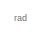
[diagram: root canvas - part 1/6, top right region]
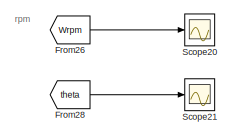
[diagram: root canvas - part 2/6, bottom left region]
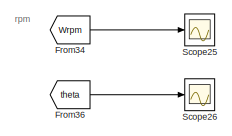
[diagram: root canvas - part 3/6, bottom right region]
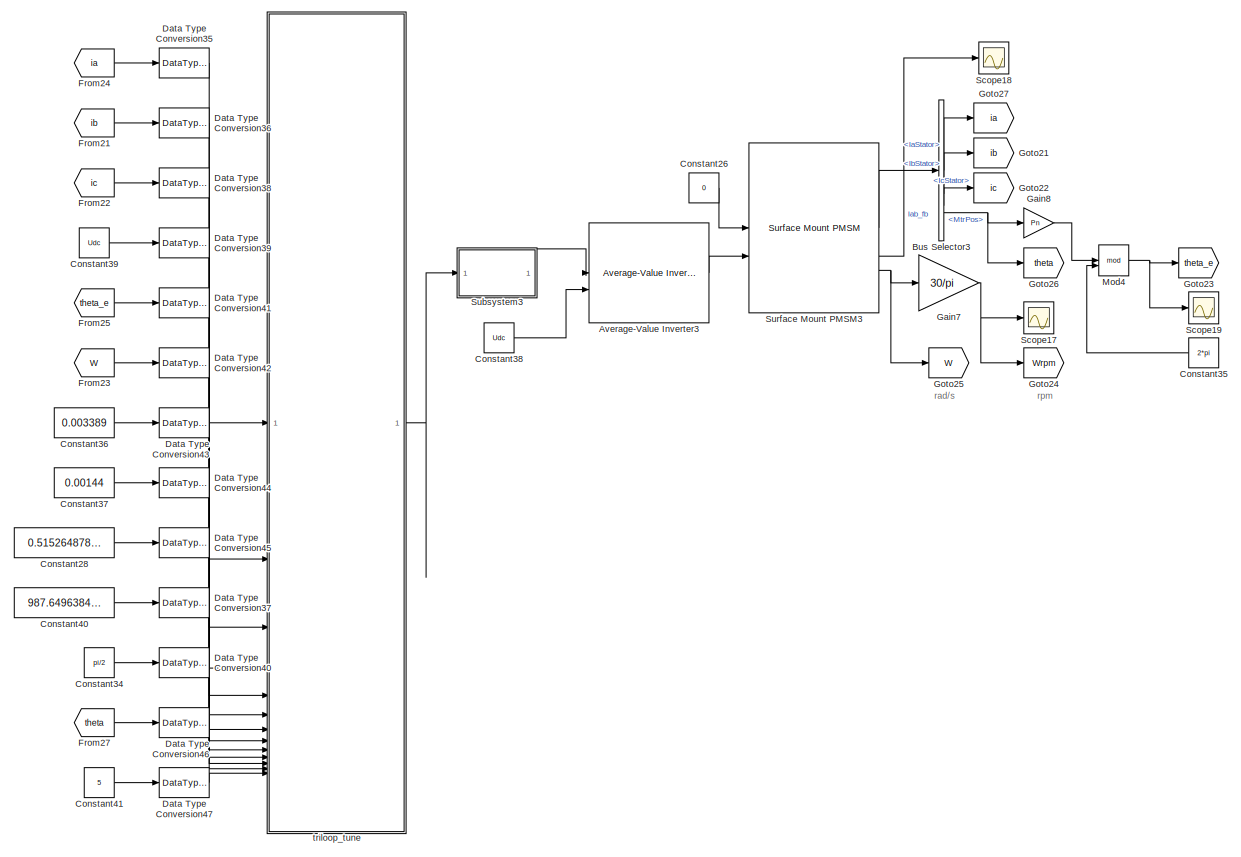
[diagram: root canvas - part 4/6, bottom left region]
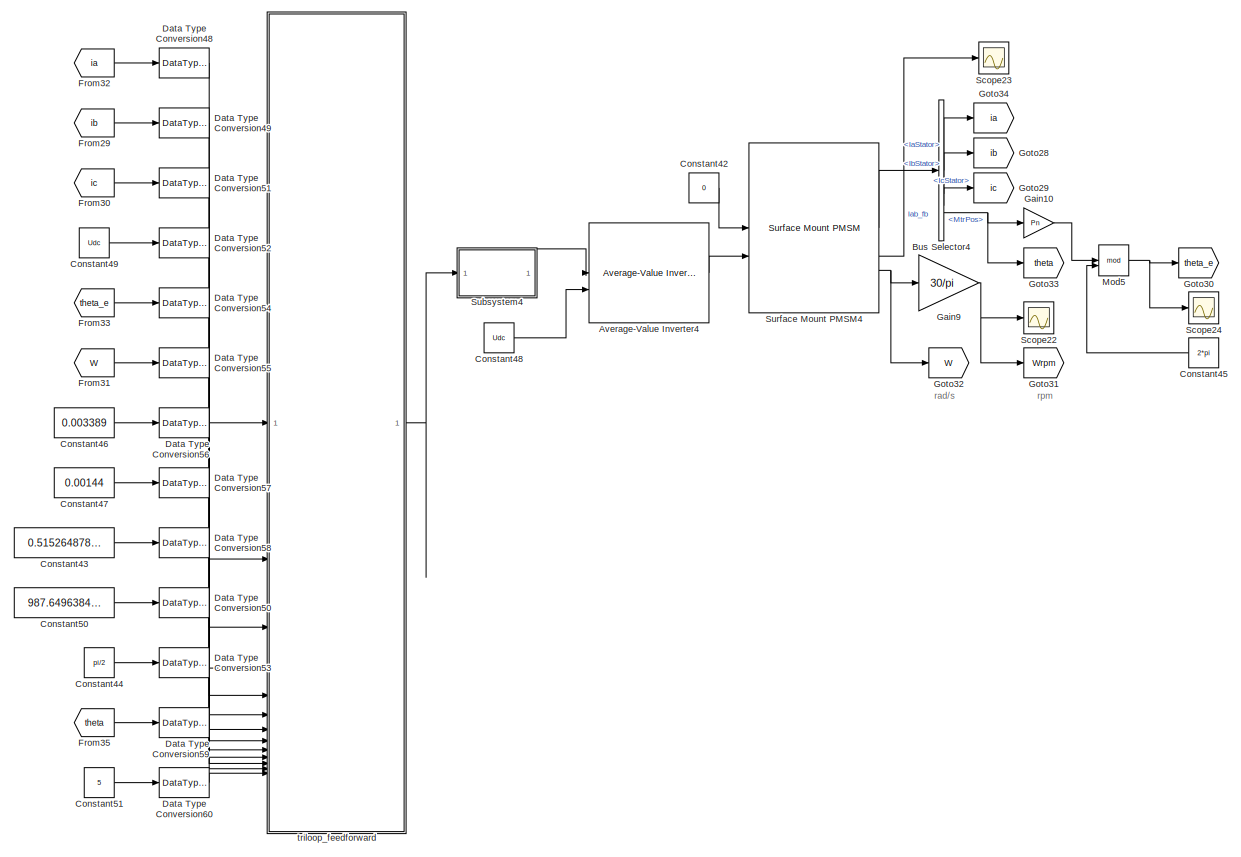
[diagram: root canvas - part 5/6, bottom right region]
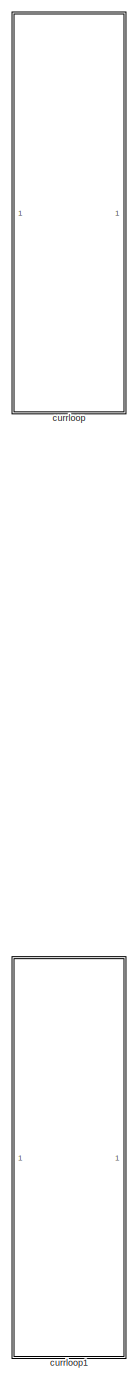
[diagram: root canvas - part 6/6, bottom center region]
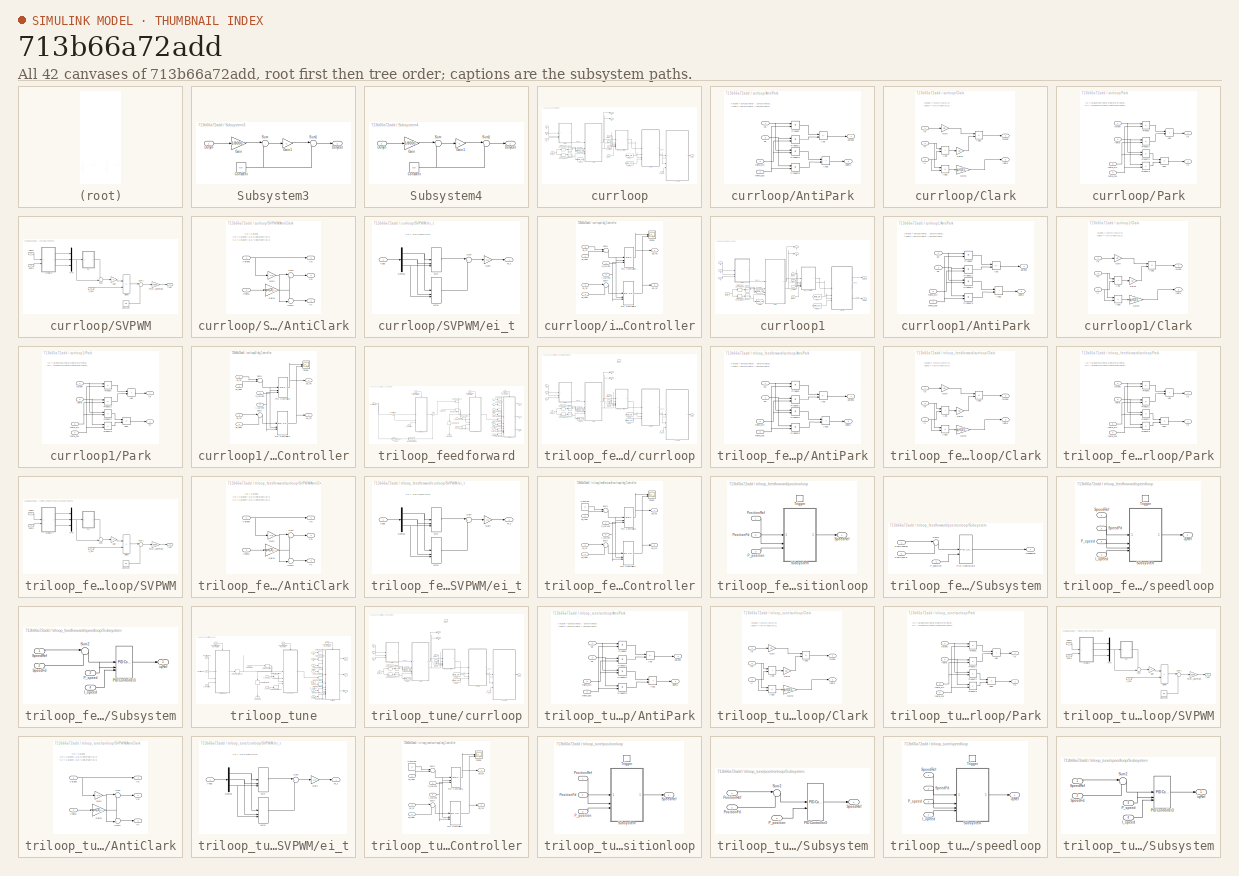
[diagram: thumbnail index - all 42 canvases of the model, root first then tree order]
MODEL slx_713b66a72add
KIND model
CONFIG AbsTol = auto
CONFIG EnableMultiTasking = off
CONFIG FixedStep = 1e-4
CONFIG MaxStep = auto
CONFIG MinStep = auto
CONFIG RelTol = 1e-3
CONFIG SampleTimeConstraint = Unconstrained
CONFIG SolverName = FixedStepAuto
CONFIG StartTime = 0.0
CONFIG StopTime = 10.0
BLOCK [Reference] Average-Value Inverter3  REF=mcbplantlib/Average-Value Inverter
  Commented = on
  SourceBlock = mcbplantlib/Average-Value Inverter
  SourceType = Average Value Inverter
BLOCK [Reference] Average-Value Inverter4  REF=mcbplantlib/Average-Value Inverter
  Commented = on
  SourceBlock = mcbplantlib/Average-Value Inverter
  SourceType = Average Value Inverter
BLOCK [BusSelector] Bus Selector3
  Commented = on
  OutputSignals = IaStator,IbStator,IcStator,MtrPos
BLOCK [BusSelector] Bus Selector4
  Commented = on
  OutputSignals = IaStator,IbStator,IcStator,MtrPos
BLOCK [Constant] Constant26
  Commented = on
  Value = 0
BLOCK [Constant] Constant28
  Commented = on
  Value = 0.515264878487547
BLOCK [Constant] Constant34
  Commented = on
  Value = pi/2
BLOCK [Constant] Constant35
  Commented = on
  NameLocation = top
  OutDataTypeStr = single
  Value = 2*pi
BLOCK [Constant] Constant36
  Commented = on
  Value = 0.003389
BLOCK [Constant] Constant37
  Commented = on
  Value = 0.00144
BLOCK [Constant] Constant38
  Commented = on
  Value = Udc
BLOCK [Constant] Constant39
  Commented = on
  OutDataTypeStr = single
  Value = Udc
BLOCK [Constant] Constant40
  Commented = on
  Value = 987.649638453674
BLOCK [Constant] Constant41
  Commented = on
  Value = 5
BLOCK [Constant] Constant42
  Commented = on
  Value = 0
BLOCK [Constant] Constant43
  Commented = on
  Value = 0.515264878487547
BLOCK [Constant] Constant44
  Commented = on
  Value = pi/2
BLOCK [Constant] Constant45
  Commented = on
  NameLocation = top
  OutDataTypeStr = single
  Value = 2*pi
BLOCK [Constant] Constant46
  Commented = on
  Value = 0.003389
BLOCK [Constant] Constant47
  Commented = on
  Value = 0.00144
BLOCK [Constant] Constant48
  Commented = on
  Value = Udc
BLOCK [Constant] Constant49
  Commented = on
  OutDataTypeStr = single
  Value = Udc
BLOCK [Constant] Constant50
  Commented = on
  Value = 987.649638453674
BLOCK [Constant] Constant51
  Commented = on
  Value = 5
BLOCK [DataTypeConversion] Data Type Conversion35
  Commented = on
  OutDataTypeStr = single
  RndMeth = Floor
  SaturateOnIntegerOverflow = off
BLOCK [DataTypeConversion] Data Type Conversion36
  Commented = on
  OutDataTypeStr = single
  RndMeth = Floor
  SaturateOnIntegerOverflow = off
BLOCK [DataTypeConversion] Data Type Conversion37
  Commented = on
  OutDataTypeStr = single
  RndMeth = Floor
  SaturateOnIntegerOverflow = off
BLOCK [DataTypeConversion] Data Type Conversion38
  Commented = on
  OutDataTypeStr = single
  RndMeth = Floor
  SaturateOnIntegerOverflow = off
BLOCK [DataTypeConversion] Data Type Conversion39
  Commented = on
  OutDataTypeStr = single
  RndMeth = Floor
  SaturateOnIntegerOverflow = off
BLOCK [DataTypeConversion] Data Type Conversion40
  Commented = on
  OutDataTypeStr = single
  RndMeth = Floor
  SaturateOnIntegerOverflow = off
BLOCK [DataTypeConversion] Data Type Conversion41
  Commented = on
  OutDataTypeStr = single
  RndMeth = Floor
  SaturateOnIntegerOverflow = off
BLOCK [DataTypeConversion] Data Type Conversion42
  Commented = on
  OutDataTypeStr = single
  RndMeth = Floor
  SaturateOnIntegerOverflow = off
BLOCK [DataTypeConversion] Data Type Conversion43
  Commented = on
  OutDataTypeStr = single
  RndMeth = Floor
  SaturateOnIntegerOverflow = off
BLOCK [DataTypeConversion] Data Type Conversion44
  Commented = on
  OutDataTypeStr = single
  RndMeth = Floor
  SaturateOnIntegerOverflow = off
BLOCK [DataTypeConversion] Data Type Conversion45
  Commented = on
  OutDataTypeStr = single
  RndMeth = Floor
  SaturateOnIntegerOverflow = off
BLOCK [DataTypeConversion] Data Type Conversion46
  Commented = on
  OutDataTypeStr = single
  RndMeth = Floor
  SaturateOnIntegerOverflow = off
BLOCK [DataTypeConversion] Data Type Conversion47
  Commented = on
  OutDataTypeStr = single
  RndMeth = Floor
  SaturateOnIntegerOverflow = off
BLOCK [DataTypeConversion] Data Type Conversion48
  Commented = on
  OutDataTypeStr = single
  RndMeth = Floor
  SaturateOnIntegerOverflow = off
BLOCK [DataTypeConversion] Data Type Conversion49
  Commented = on
  OutDataTypeStr = single
  RndMeth = Floor
  SaturateOnIntegerOverflow = off
BLOCK [DataTypeConversion] Data Type Conversion50
  Commented = on
  OutDataTypeStr = single
  RndMeth = Floor
  SaturateOnIntegerOverflow = off
BLOCK [DataTypeConversion] Data Type Conversion51
  Commented = on
  OutDataTypeStr = single
  RndMeth = Floor
  SaturateOnIntegerOverflow = off
BLOCK [DataTypeConversion] Data Type Conversion52
  Commented = on
  OutDataTypeStr = single
  RndMeth = Floor
  SaturateOnIntegerOverflow = off
BLOCK [DataTypeConversion] Data Type Conversion53
  Commented = on
  OutDataTypeStr = single
  RndMeth = Floor
  SaturateOnIntegerOverflow = off
BLOCK [DataTypeConversion] Data Type Conversion54
  Commented = on
  OutDataTypeStr = single
  RndMeth = Floor
  SaturateOnIntegerOverflow = off
BLOCK [DataTypeConversion] Data Type Conversion55
  Commented = on
  OutDataTypeStr = single
  RndMeth = Floor
  SaturateOnIntegerOverflow = off
BLOCK [DataTypeConversion] Data Type Conversion56
  Commented = on
  OutDataTypeStr = single
  RndMeth = Floor
  SaturateOnIntegerOverflow = off
BLOCK [DataTypeConversion] Data Type Conversion57
  Commented = on
  OutDataTypeStr = single
  RndMeth = Floor
  SaturateOnIntegerOverflow = off
BLOCK [DataTypeConversion] Data Type Conversion58
  Commented = on
  OutDataTypeStr = single
  RndMeth = Floor
  SaturateOnIntegerOverflow = off
BLOCK [DataTypeConversion] Data Type Conversion59
  Commented = on
  OutDataTypeStr = single
  RndMeth = Floor
  SaturateOnIntegerOverflow = off
BLOCK [DataTypeConversion] Data Type Conversion60
  Commented = on
  OutDataTypeStr = single
  RndMeth = Floor
  SaturateOnIntegerOverflow = off
BLOCK [From] From21
  Commented = on
  GotoTag = ib
BLOCK [From] From22
  Commented = on
  GotoTag = ic
BLOCK [From] From23
  Commented = on
  GotoTag = W
BLOCK [From] From24
  Commented = on
  GotoTag = ia
BLOCK [From] From25
  Commented = on
  GotoTag = theta_e
  TagVisibility = global
BLOCK [From] From26
  Commented = on
  GotoTag = Wrpm
BLOCK [From] From27
  Commented = on
  GotoTag = theta
  TagVisibility = global
BLOCK [From] From28
  Commented = on
  GotoTag = theta
  TagVisibility = global
BLOCK [From] From29
  Commented = on
  GotoTag = ib
BLOCK [From] From30
  Commented = on
  GotoTag = ic
BLOCK [From] From31
  Commented = on
  GotoTag = W
BLOCK [From] From32
  Commented = on
  GotoTag = ia
BLOCK [From] From33
  Commented = on
  GotoTag = theta_e
  TagVisibility = global
BLOCK [From] From34
  Commented = on
  GotoTag = Wrpm
BLOCK [From] From35
  Commented = on
  GotoTag = theta
  TagVisibility = global
BLOCK [From] From36
  Commented = on
  GotoTag = theta
  TagVisibility = global
BLOCK [Gain] Gain10
  Commented = on
  Gain = Pn
  OutDataTypeStr = single
BLOCK [Gain] Gain7
  Commented = on
  Gain = 30/pi
  OutDataTypeStr = single
BLOCK [Gain] Gain8
  Commented = on
  Gain = Pn
  OutDataTypeStr = single
BLOCK [Gain] Gain9
  Commented = on
  Gain = 30/pi
  OutDataTypeStr = single
BLOCK [Goto] Goto21
  Commented = on
  GotoTag = ib
BLOCK [Goto] Goto22
  Commented = on
  GotoTag = ic
BLOCK [Goto] Goto23
  Commented = on
  GotoTag = theta_e
  TagVisibility = global
BLOCK [Goto] Goto24
  Commented = on
  GotoTag = Wrpm
BLOCK [Goto] Goto25
  Commented = on
  GotoTag = W
BLOCK [Goto] Goto26
  Commented = on
  GotoTag = theta
  TagVisibility = global
BLOCK [Goto] Goto27
  Commented = on
  GotoTag = ia
BLOCK [Goto] Goto28
  Commented = on
  GotoTag = ib
BLOCK [Goto] Goto29
  Commented = on
  GotoTag = ic
BLOCK [Goto] Goto30
  Commented = on
  GotoTag = theta_e
  TagVisibility = global
BLOCK [Goto] Goto31
  Commented = on
  GotoTag = Wrpm
BLOCK [Goto] Goto32
  Commented = on
  GotoTag = W
BLOCK [Goto] Goto33
  Commented = on
  GotoTag = theta
  TagVisibility = global
BLOCK [Goto] Goto34
  Commented = on
  GotoTag = ia
BLOCK [Math] Mod4
  Commented = on
  Operator = mod
  OutputSignalType = real
BLOCK [Math] Mod5
  Commented = on
  Operator = mod
  OutputSignalType = real
BLOCK [Scope] Scope17
  Commented = on
  Floating = off
  NumInputPorts = 1
  ScopeSpecificationString = Simulink.scopes.TimeScopeBlockCfg('CurrentConfiguration', extmgr.ConfigurationSet(extmgr.Configuration('Core','General UI',true),extmgr.Configuration('Core','Source UI',true),extmgr.Configuration('Sources','WiredSimulink',true,'DataLoggingVariableName','ScopeData9'),extmgr.Configuration('Visuals','Time Domain',true,'SerializedDisplays',{struct('MinYLimReal','-12.49606','MaxYLimReal','112.46453','Y...<+1517ch>
BLOCK [Scope] Scope18
  Commented = on
  Floating = off
  NumInputPorts = 1
  ScopeSpecificationString = Simulink.scopes.TimeScopeBlockCfg('CurrentConfiguration', extmgr.ConfigurationSet(extmgr.Configuration('Core','General UI',true),extmgr.Configuration('Core','Source UI',true),extmgr.Configuration('Sources','WiredSimulink',true,'DataLoggingVariableName','ScopeData10'),extmgr.Configuration('Visuals','Time Domain',true,'SerializedDisplays',{struct('MinYLimReal','-0.18729','MaxYLimReal','0.18998','YLa...<+1602ch>
BLOCK [Scope] Scope19
  Commented = on
  Floating = off
  NumInputPorts = 1
  ScopeSpecificationString = Simulink.scopes.TimeScopeBlockCfg('CurrentConfiguration', extmgr.ConfigurationSet(extmgr.Configuration('Core','General UI',true),extmgr.Configuration('Core','Source UI',true),extmgr.Configuration('Sources','WiredSimulink',true,'DataLoggingVariableName','ScopeData11'),extmgr.Configuration('Visuals','Time Domain',true,'SerializedDisplays',{struct('MinYLimReal','-0.7853','MaxYLimReal','7.06857','YLab...<+1501ch>
BLOCK [Scope] Scope20
  Commented = on
  Floating = off
  NumInputPorts = 1
  ScopeSpecificationString = Simulink.scopes.TimeScopeBlockCfg('CurrentConfiguration', extmgr.ConfigurationSet(extmgr.Configuration('Core','General UI',true),extmgr.Configuration('Core','Source UI',true),extmgr.Configuration('Sources','WiredSimulink',true,'DataLoggingVariableName','ScopeData12'),extmgr.Configuration('Visuals','Time Domain',true,'SerializedDisplays',{struct('MinYLimReal','-12.49606','MaxYLimReal','112.46453','...<+1618ch>
BLOCK [Scope] Scope21
  Commented = on
  Floating = off
  NumInputPorts = 1
  ScopeSpecificationString = Simulink.scopes.TimeScopeBlockCfg('CurrentConfiguration', extmgr.ConfigurationSet(extmgr.Configuration('Core','General UI',true),extmgr.Configuration('Core','Source UI',true),extmgr.Configuration('Sources','WiredSimulink',true,'DataLoggingVariableName','ScopeData13'),extmgr.Configuration('Visuals','Time Domain',true,'SerializedDisplays',{struct('MinYLimReal','-0.19661','MaxYLimReal','1.76948','YLa...<+1611ch>
BLOCK [Scope] Scope22
  Commented = on
  Floating = off
  NumInputPorts = 1
  ScopeSpecificationString = Simulink.scopes.TimeScopeBlockCfg('CurrentConfiguration', extmgr.ConfigurationSet(extmgr.Configuration('Core','General UI',true),extmgr.Configuration('Core','Source UI',true),extmgr.Configuration('Sources','WiredSimulink',true,'DataLoggingVariableName','ScopeData14'),extmgr.Configuration('Visuals','Time Domain',true,'SerializedDisplays',{struct('MinYLimReal','-50.0508','MaxYLimReal','211.68716','Y...<+1539ch>
BLOCK [Scope] Scope23
  Commented = on
  Floating = off
  NumInputPorts = 1
  ScopeSpecificationString = Simulink.scopes.TimeScopeBlockCfg('CurrentConfiguration', extmgr.ConfigurationSet(extmgr.Configuration('Core','General UI',true),extmgr.Configuration('Core','Source UI',true),extmgr.Configuration('Sources','WiredSimulink',true,'DataLoggingVariableName','ScopeData15'),extmgr.Configuration('Visuals','Time Domain',true,'SerializedDisplays',{struct('MinYLimReal','-0.18729','MaxYLimReal','0.18998','YLa...<+1602ch>
BLOCK [Scope] Scope24
  Commented = on
  Floating = off
  NumInputPorts = 1
  ScopeSpecificationString = Simulink.scopes.TimeScopeBlockCfg('CurrentConfiguration', extmgr.ConfigurationSet(extmgr.Configuration('Core','General UI',true),extmgr.Configuration('Core','Source UI',true),extmgr.Configuration('Sources','WiredSimulink',true,'DataLoggingVariableName','ScopeData16'),extmgr.Configuration('Visuals','Time Domain',true,'SerializedDisplays',{struct('MinYLimReal','-0.7853','MaxYLimReal','7.06857','YLab...<+1577ch>
BLOCK [Scope] Scope25
  Commented = on
  Floating = off
  NumInputPorts = 1
  ScopeSpecificationString = Simulink.scopes.TimeScopeBlockCfg('CurrentConfiguration', extmgr.ConfigurationSet(extmgr.Configuration('Core','General UI',true),extmgr.Configuration('Core','Source UI',true),extmgr.Configuration('Sources','WiredSimulink',true,'DataLoggingVariableName','ScopeData17'),extmgr.Configuration('Visuals','Time Domain',true,'SerializedDisplays',{struct('MinYLimReal','-12.49606','MaxYLimReal','112.46453','...<+1618ch>
BLOCK [Scope] Scope26
  Commented = on
  Floating = off
  NumInputPorts = 1
  ScopeSpecificationString = Simulink.scopes.TimeScopeBlockCfg('CurrentConfiguration', extmgr.ConfigurationSet(extmgr.Configuration('Core','General UI',true),extmgr.Configuration('Core','Source UI',true),extmgr.Configuration('Sources','WiredSimulink',true,'DataLoggingVariableName','ScopeData18'),extmgr.Configuration('Visuals','Time Domain',true,'SerializedDisplays',{struct('MinYLimReal','0.8011','MaxYLimReal','1.76978','YLabe...<+1578ch>
BLOCK [SubSystem] Subsystem3
  Commented = on
  PortSchema = {"entries":[{"content":{"sides":[{"content":{"connectorIds":["In1"]},"type":"ConnectorPlacement.EquallySpacedRectSide","uuid":"8ccc51de-fa2a-4900-80a3-4cdf9aa76f01"},{"content":{"connectorIds":[],"side":"RIGHT"},"type":"ConnectorPlacement.EquallySpacedRectSide","uuid":"32c06e0d-3f1d-4948-af96-e310e54308a0"},{"content":{"connectorIds":["Out1"],"side":"TOP"},"type":"ConnectorPlacement.EquallySpacedR...<+240ch>
BLOCK [Constant] Subsystem3/Constant
  SampleTime = -1
  Value = 0.5
BLOCK [Inport] Subsystem3/DutyIn
BLOCK [Outport] Subsystem3/DutyOut
BLOCK [Gain] Subsystem3/Gain
  Gain = 1/8000
  ParamDataTypeStr = single
BLOCK [Gain] Subsystem3/Gain1
  Gain = -1
BLOCK [Sum] Subsystem3/Sum
  Inputs = |+-
BLOCK [Sum] Subsystem3/Sum1
  Inputs = |++
BLOCK [SubSystem] Subsystem4
  Commented = on
  PortSchema = {"entries":[{"content":{"sides":[{"content":{"connectorIds":["In1"]},"type":"ConnectorPlacement.EquallySpacedRectSide","uuid":"8ccc51de-fa2a-4900-80a3-4cdf9aa76f01"},{"content":{"connectorIds":[],"side":"RIGHT"},"type":"ConnectorPlacement.EquallySpacedRectSide","uuid":"32c06e0d-3f1d-4948-af96-e310e54308a0"},{"content":{"connectorIds":["Out1"],"side":"TOP"},"type":"ConnectorPlacement.EquallySpacedR...<+240ch>
BLOCK [Constant] Subsystem4/Constant
  SampleTime = -1
  Value = 0.5
BLOCK [Inport] Subsystem4/DutyIn
BLOCK [Outport] Subsystem4/DutyOut
BLOCK [Gain] Subsystem4/Gain
  Gain = 1/8000
  ParamDataTypeStr = single
BLOCK [Gain] Subsystem4/Gain1
  Gain = -1
BLOCK [Sum] Subsystem4/Sum
  Inputs = |+-
BLOCK [Sum] Subsystem4/Sum1
  Inputs = |++
BLOCK [Reference] Surface Mount PMSM3  REF=autolibpmsmexterior/Surface Mount PMSM
  Commented = on
  LibrarySourceBlock = mcblib/Electrical Systems/Motors/Surface Mount PMSM
  SourceBlock = autolibpmsmexterior/Surface Mount PMSM
  SourceType = Surface Mount PMSM
BLOCK [Reference] Surface Mount PMSM4  REF=autolibpmsmexterior/Surface Mount PMSM
  Commented = on
  LibrarySourceBlock = mcblib/Electrical Systems/Motors/Surface Mount PMSM
  SourceBlock = autolibpmsmexterior/Surface Mount PMSM
  SourceType = Surface Mount PMSM
BLOCK [SubSystem] currloop
  TreatAsAtomicUnit = on
BLOCK [SubSystem] currloop/AntiPark
BLOCK [Sum] currloop/AntiPark/Add
  IconShape = rectangular
  Inputs = +-
BLOCK [Sum] currloop/AntiPark/Add1
  IconShape = rectangular
BLOCK [Product] currloop/AntiPark/Product
BLOCK [Product] currloop/AntiPark/Product1
BLOCK [Product] currloop/AntiPark/Product2
BLOCK [Product] currloop/AntiPark/Product3
BLOCK [Inport] currloop/AntiPark/theta_cos
  Port = 4
BLOCK [Inport] currloop/AntiPark/theta_sin
  Port = 3
BLOCK [Outport] currloop/AntiPark/ualpha
  OutDataTypeStr = single
BLOCK [Outport] currloop/AntiPark/ubeta
  OutDataTypeStr = single
  Port = 2
BLOCK [Inport] currloop/AntiPark/ud
BLOCK [Inport] currloop/AntiPark/uq
  Port = 2
BLOCK [SubSystem] currloop/Clark
BLOCK [Sum] currloop/Clark/Add
  AccumDataTypeStr = single
  IconShape = rectangular
  OutDataTypeStr = single
BLOCK [Sum] currloop/Clark/Add1
  AccumDataTypeStr = single
  IconShape = rectangular
  Inputs = +-
  OutDataTypeStr = single
BLOCK [Sum] currloop/Clark/Add2
  AccumDataTypeStr = single
  IconShape = rectangular
  Inputs = +-
  OutDataTypeStr = single
BLOCK [Gain] currloop/Clark/Gain
  Gain = 2/3
  ParamDataTypeStr = single
BLOCK [Gain] currloop/Clark/Gain1
  Gain = 1/3
  ParamDataTypeStr = single
BLOCK [Gain] currloop/Clark/Gain2
  Gain = sqrt(3)/3
  ParamDataTypeStr = single
BLOCK [Inport] currloop/Clark/ia
  OutDataTypeStr = single
BLOCK [Outport] currloop/Clark/ialpha
  OutDataTypeStr = single
BLOCK [Inport] currloop/Clark/ib
  OutDataTypeStr = single
  Port = 2
BLOCK [Outport] currloop/Clark/ibeta
  OutDataTypeStr = single
  Port = 2
BLOCK [Inport] currloop/Clark/ic
  OutDataTypeStr = single
  Port = 3
BLOCK [DataTypeConversion] currloop/Data Type Conversion3
  OutDataTypeStr = single
  RndMeth = Floor
  SaturateOnIntegerOverflow = off
BLOCK [DataTypeConversion] currloop/Data Type Conversion4
  OutDataTypeStr = single
  RndMeth = Floor
  SaturateOnIntegerOverflow = off
BLOCK [From] currloop/From
  GotoTag = theta_sin
BLOCK [From] currloop/From1
  GotoTag = theta_cos
BLOCK [Goto] currloop/Goto
  GotoTag = theta_sin
BLOCK [Goto] currloop/Goto1
  GotoTag = theta_cos
BLOCK [Inport] currloop/I_current
  Port = 8
BLOCK [Inport] currloop/IdRef
  Port = 9
BLOCK [Inport] currloop/IqRef
  Port = 5
BLOCK [Inport] currloop/P_current
  Port = 7
BLOCK [SubSystem] currloop/Park
BLOCK [Sum] currloop/Park/Add
  AccumDataTypeStr = single
  IconShape = rectangular
  OutDataTypeStr = single
BLOCK [Sum] currloop/Park/Add1
  AccumDataTypeStr = single
  IconShape = rectangular
  Inputs = -+
  OutDataTypeStr = single
BLOCK [Product] currloop/Park/Product
  OutDataTypeStr = single
BLOCK [Product] currloop/Park/Product1
  OutDataTypeStr = single
BLOCK [Product] currloop/Park/Product2
  OutDataTypeStr = single
BLOCK [Product] currloop/Park/Product3
  OutDataTypeStr = single
BLOCK [Inport] currloop/Park/ialpha
  OutDataTypeStr = single
BLOCK [Inport] currloop/Park/ibeta
  OutDataTypeStr = single
  Port = 2
BLOCK [Outport] currloop/Park/id
  OutDataTypeStr = single
BLOCK [Outport] currloop/Park/iq
  OutDataTypeStr = single
  Port = 2
BLOCK [Inport] currloop/Park/theta_cos
  OutDataTypeStr = single
  Port = 4
BLOCK [Inport] currloop/Park/theta_sin
  OutDataTypeStr = single
  Port = 3
BLOCK [SubSystem] currloop/SVPWM
  RTWSystemCode = Reusable function
  TreatAsAtomicUnit = on
BLOCK [SubSystem] currloop/SVPWM/AntiClark
BLOCK [Gain] currloop/SVPWM/AntiClark/Gain
  Gain = -1/2
  OutDataTypeStr = single
BLOCK [Gain] currloop/SVPWM/AntiClark/Gain1
  Gain = sqrt(3)/2
  OutDataTypeStr = single
BLOCK [Sum] currloop/SVPWM/AntiClark/Sum
  Inputs = |++
  OutDataTypeStr = single
BLOCK [Sum] currloop/SVPWM/AntiClark/Sum1
  Inputs = -+|
  OutDataTypeStr = single
BLOCK [Outport] currloop/SVPWM/AntiClark/Va
  OutDataTypeStr = single
BLOCK [Inport] currloop/SVPWM/AntiClark/Valpha
  OutDataTypeStr = single
BLOCK [Outport] currloop/SVPWM/AntiClark/Vb
  OutDataTypeStr = single
  Port = 2
BLOCK [Inport] currloop/SVPWM/AntiClark/Vbeta
  OutDataTypeStr = single
  Port = 2
BLOCK [Outport] currloop/SVPWM/AntiClark/Vc
  OutDataTypeStr = single
  Port = 3
BLOCK [Constant] currloop/SVPWM/Constant
  OutDataTypeStr = single
  Value = 0.5
BLOCK [Product] currloop/SVPWM/Divide
  Inputs = */
  OutDataTypeStr = single
BLOCK [Gain] currloop/SVPWM/Gain
  Gain = -1
  OutDataTypeStr = single
BLOCK [Mux] currloop/SVPWM/Mux
  DisplayOption = bar
  Inputs = 3
BLOCK [Gain] currloop/SVPWM/PWM_HalfPeriod
  Gain = 8500
  OutDataTypeStr = single
BLOCK [Sum] currloop/SVPWM/Sum
  Inputs = ++|
  OutDataTypeStr = single
BLOCK [Sum] currloop/SVPWM/Sum1
  Inputs = |++
  OutDataTypeStr = single
BLOCK [Inport] currloop/SVPWM/Valpha
  OutDataTypeStr = single
BLOCK [Inport] currloop/SVPWM/Vbeta
  OutDataTypeStr = single
  Port = 2
BLOCK [SubSystem] currloop/SVPWM/ei_t
BLOCK [Demux] currloop/SVPWM/ei_t/Demux
  Outputs = 3
BLOCK [Gain] currloop/SVPWM/ei_t/Gain
  Gain = -1/2
  OutDataTypeStr = single
BLOCK [MinMax] currloop/SVPWM/ei_t/Min
  Inputs = 3
  OutDataTypeStr = single
BLOCK [MinMax] currloop/SVPWM/ei_t/Min1
  Function = max
  Inputs = 3
  OutDataTypeStr = single
BLOCK [Sum] currloop/SVPWM/ei_t/Sum
  Inputs = |++
  OutDataTypeStr = single
BLOCK [Inport] currloop/SVPWM/ei_t/Vabc
  OutDataTypeStr = single
BLOCK [Outport] currloop/SVPWM/ei_t/ei_t
  OutDataTypeStr = single
BLOCK [Outport] currloop/SVPWM/tABC
  OutDataTypeStr = single
BLOCK [Inport] currloop/SVPWM/v_bus
  OutDataTypeStr = single
  Port = 3
BLOCK [Trigonometry] currloop/SinCos
BLOCK [Trigonometry] currloop/SinCos1
  Operator = cos
BLOCK [Inport] currloop/ia
BLOCK [Inport] currloop/ib
  Port = 2
BLOCK [Inport] currloop/ic
  Port = 3
BLOCK [Outport] currloop/id
  Port = 2
BLOCK [SubSystem] currloop/idq_Controller
BLOCK [Inport] currloop/idq_Controller/I_current
  OutDataTypeStr = single
  Port = 5
BLOCK [Reference] currloop/idq_Controller/PID Controller1  REF=slpidlib/PID Controller
  SourceBlock = slpidlib/PID Controller
  SourceType = PID 1dof
BLOCK [Reference] currloop/idq_Controller/PID Controller2  REF=slpidlib/PID Controller
  SourceBlock = slpidlib/PID Controller
  SourceType = PID 1dof
BLOCK [Inport] currloop/idq_Controller/P_current
  OutDataTypeStr = single
  Port = 4
BLOCK [Scope] currloop/idq_Controller/Scope
  Floating = off
  NumInputPorts = 2
  ScopeSpecificationString = Simulink.scopes.TimeScopeBlockCfg('CurrentConfiguration', extmgr.ConfigurationSet(extmgr.Configuration('Core','General UI',true),extmgr.Configuration('Core','Source UI',true),extmgr.Configuration('Sources','WiredSimulink',true,'DataLoggingVariableName','ScopeData2'),extmgr.Configuration('Visuals','Time Domain',true,'SerializedDisplays',{struct('MinYLimReal','-5.23788','MaxYLimReal','14.43839','YLa...<+1450ch>  <repeated x4 — deduplicated; at blocks: Scope>
BLOCK [Sum] currloop/idq_Controller/Sum1
  AccumDataTypeStr = single
  Inputs = |+-
  OutDataTypeStr = single
BLOCK [Sum] currloop/idq_Controller/Sum7
  AccumDataTypeStr = single
  Inputs = |+-
  OutDataTypeStr = single
BLOCK [Inport] currloop/idq_Controller/id_fdbk
  OutDataTypeStr = single
BLOCK [Inport] currloop/idq_Controller/id_ref
  OutDataTypeStr = single
  Port = 6
BLOCK [Inport] currloop/idq_Controller/iq_fdbk
  OutDataTypeStr = single
  Port = 2
BLOCK [Inport] currloop/idq_Controller/iq_ref
  OutDataTypeStr = single
  Port = 3
BLOCK [Outport] currloop/idq_Controller/ud_ref
  OutDataTypeStr = single
BLOCK [Outport] currloop/idq_Controller/uq_ref
  OutDataTypeStr = single
  Port = 2
BLOCK [Outport] currloop/iq
  Port = 3
BLOCK [Outport] currloop/tABC
BLOCK [Inport] currloop/theta_e
  Port = 6
BLOCK [Inport] currloop/v_bus
  Port = 4
BLOCK [SubSystem] currloop1
  TreatAsAtomicUnit = on
BLOCK [SubSystem] currloop1/AntiPark
BLOCK [Sum] currloop1/AntiPark/Add
  IconShape = rectangular
  Inputs = +-
BLOCK [Sum] currloop1/AntiPark/Add1
  IconShape = rectangular
BLOCK [Product] currloop1/AntiPark/Product
BLOCK [Product] currloop1/AntiPark/Product1
BLOCK [Product] currloop1/AntiPark/Product2
BLOCK [Product] currloop1/AntiPark/Product3
BLOCK [Inport] currloop1/AntiPark/theta_cos
  Port = 4
BLOCK [Inport] currloop1/AntiPark/theta_sin
  Port = 3
BLOCK [Outport] currloop1/AntiPark/ualpha
  OutDataTypeStr = single
BLOCK [Outport] currloop1/AntiPark/ubeta
  OutDataTypeStr = single
  Port = 2
BLOCK [Inport] currloop1/AntiPark/ud
BLOCK [Inport] currloop1/AntiPark/uq
  Port = 2
BLOCK [SubSystem] currloop1/Clark
BLOCK [Sum] currloop1/Clark/Add
  AccumDataTypeStr = single
  IconShape = rectangular
  OutDataTypeStr = single
BLOCK [Sum] currloop1/Clark/Add1
  AccumDataTypeStr = single
  IconShape = rectangular
  Inputs = +-
  OutDataTypeStr = single
BLOCK [Sum] currloop1/Clark/Add2
  AccumDataTypeStr = single
  IconShape = rectangular
  Inputs = +-
  OutDataTypeStr = single
BLOCK [Gain] currloop1/Clark/Gain
  Gain = 2/3
  ParamDataTypeStr = single
BLOCK [Gain] currloop1/Clark/Gain1
  Gain = 1/3
  ParamDataTypeStr = single
BLOCK [Gain] currloop1/Clark/Gain2
  Gain = sqrt(3)/3
  ParamDataTypeStr = single
BLOCK [Inport] currloop1/Clark/ia
  OutDataTypeStr = single
BLOCK [Outport] currloop1/Clark/ialpha
  OutDataTypeStr = single
BLOCK [Inport] currloop1/Clark/ib
  OutDataTypeStr = single
  Port = 2
BLOCK [Outport] currloop1/Clark/ibeta
  OutDataTypeStr = single
  Port = 2
BLOCK [Inport] currloop1/Clark/ic
  OutDataTypeStr = single
  Port = 3
BLOCK [DataTypeConversion] currloop1/Data Type Conversion3
  OutDataTypeStr = single
  RndMeth = Floor
  SaturateOnIntegerOverflow = off
BLOCK [DataTypeConversion] currloop1/Data Type Conversion4
  OutDataTypeStr = single
  RndMeth = Floor
  SaturateOnIntegerOverflow = off
BLOCK [From] currloop1/From
  GotoTag = theta_sin
BLOCK [From] currloop1/From1
  GotoTag = theta_cos
BLOCK [Goto] currloop1/Goto
  GotoTag = theta_sin
BLOCK [Goto] currloop1/Goto1
  GotoTag = theta_cos
BLOCK [Inport] currloop1/I_current
  Port = 7
BLOCK [Inport] currloop1/IdRef
  Port = 8
BLOCK [Inport] currloop1/IqRef
  Port = 4
BLOCK [Inport] currloop1/P_current
  Port = 6
BLOCK [SubSystem] currloop1/Park
BLOCK [Sum] currloop1/Park/Add
  AccumDataTypeStr = single
  IconShape = rectangular
  OutDataTypeStr = single
BLOCK [Sum] currloop1/Park/Add1
  AccumDataTypeStr = single
  IconShape = rectangular
  Inputs = -+
  OutDataTypeStr = single
BLOCK [Product] currloop1/Park/Product
  OutDataTypeStr = single
BLOCK [Product] currloop1/Park/Product1
  OutDataTypeStr = single
BLOCK [Product] currloop1/Park/Product2
  OutDataTypeStr = single
BLOCK [Product] currloop1/Park/Product3
  OutDataTypeStr = single
BLOCK [Inport] currloop1/Park/ialpha
  OutDataTypeStr = single
BLOCK [Inport] currloop1/Park/ibeta
  OutDataTypeStr = single
  Port = 2
BLOCK [Outport] currloop1/Park/id
  OutDataTypeStr = single
BLOCK [Outport] currloop1/Park/iq
  OutDataTypeStr = single
  Port = 2
BLOCK [Inport] currloop1/Park/theta_cos
  OutDataTypeStr = single
  Port = 4
BLOCK [Inport] currloop1/Park/theta_sin
  OutDataTypeStr = single
  Port = 3
BLOCK [Trigonometry] currloop1/SinCos
BLOCK [Trigonometry] currloop1/SinCos1
  Operator = cos
BLOCK [Inport] currloop1/ia
BLOCK [Inport] currloop1/ib
  Port = 2
BLOCK [Inport] currloop1/ic
  Port = 3
BLOCK [Outport] currloop1/id
BLOCK [SubSystem] currloop1/idq_Controller
BLOCK [Inport] currloop1/idq_Controller/I_current
  OutDataTypeStr = single
  Port = 5
BLOCK [Reference] currloop1/idq_Controller/PID Controller1  REF=slpidlib/PID Controller
  SourceBlock = slpidlib/PID Controller
  SourceType = PID 1dof
BLOCK [Reference] currloop1/idq_Controller/PID Controller2  REF=slpidlib/PID Controller
  SourceBlock = slpidlib/PID Controller
  SourceType = PID 1dof
BLOCK [Inport] currloop1/idq_Controller/P_current
  OutDataTypeStr = single
  Port = 4
BLOCK [Scope] currloop1/idq_Controller/Scope
  Floating = off
  NumInputPorts = 2
BLOCK [Sum] currloop1/idq_Controller/Sum1
  AccumDataTypeStr = single
  Inputs = |+-
  OutDataTypeStr = single
BLOCK [Sum] currloop1/idq_Controller/Sum7
  AccumDataTypeStr = single
  Inputs = |+-
  OutDataTypeStr = single
BLOCK [Inport] currloop1/idq_Controller/id_fdbk
  OutDataTypeStr = single
BLOCK [Inport] currloop1/idq_Controller/id_ref
  OutDataTypeStr = single
  Port = 6
BLOCK [Inport] currloop1/idq_Controller/iq_fdbk
  OutDataTypeStr = single
  Port = 2
BLOCK [Inport] currloop1/idq_Controller/iq_ref
  OutDataTypeStr = single
  Port = 3
BLOCK [Outport] currloop1/idq_Controller/ud_ref
  OutDataTypeStr = single
BLOCK [Outport] currloop1/idq_Controller/uq_ref
  OutDataTypeStr = single
  Port = 2
BLOCK [Outport] currloop1/iq
  Port = 2
BLOCK [Inport] currloop1/theta_e
  Port = 5
BLOCK [Outport] currloop1/ualpha
  Port = 3
BLOCK [Outport] currloop1/ubeta
  Port = 4
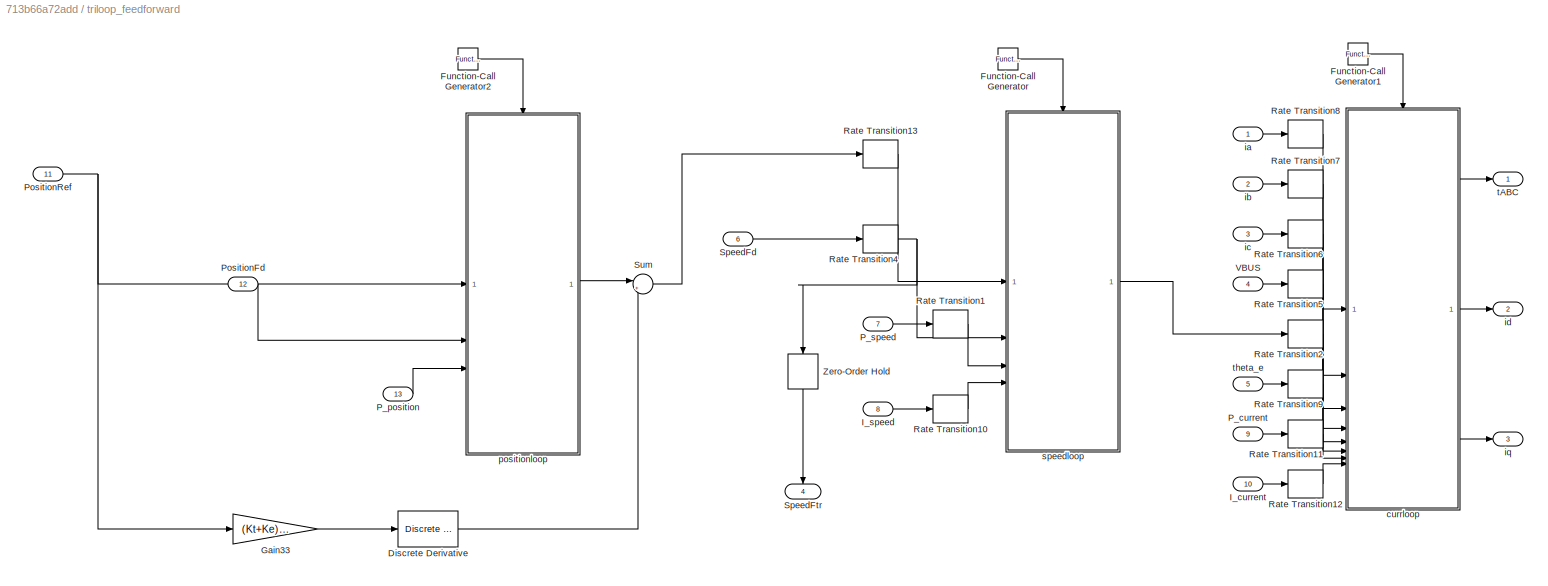
BLOCK [SubSystem] triloop_feedforward
  Commented = on
  TreatAsAtomicUnit = on
BLOCK [Reference] triloop_feedforward/Discrete Derivative  REF=simulink/Discrete/Discrete Derivative
  SourceBlock = simulink/Discrete/Discrete Derivative
  SourceType = Discrete Derivative
BLOCK [Reference] triloop_feedforward/Function-Call Generator  REF=simulink/Ports &
Subsystems/Function-Call
Generator
  SourceBlock = simulink/Ports &\nSubsystems/Function-Call\nGenerator
  SourceType = Function-Call Generator
BLOCK [Reference] triloop_feedforward/Function-Call Generator1  REF=simulink/Ports &
Subsystems/Function-Call
Generator
  SourceBlock = simulink/Ports &\nSubsystems/Function-Call\nGenerator
  SourceType = Function-Call Generator
BLOCK [Reference] triloop_feedforward/Function-Call Generator2  REF=simulink/Ports &
Subsystems/Function-Call
Generator
  SourceBlock = simulink/Ports &\nSubsystems/Function-Call\nGenerator
  SourceType = Function-Call Generator
BLOCK [Gain] triloop_feedforward/Gain33
  Gain = (Kt+Ke)/Kt
BLOCK [Inport] triloop_feedforward/I_current
  Port = 10
BLOCK [Inport] triloop_feedforward/I_speed
  Port = 8
BLOCK [Inport] triloop_feedforward/P_current
  Port = 9
BLOCK [Inport] triloop_feedforward/P_position
  Port = 13
BLOCK [Inport] triloop_feedforward/P_speed
  Port = 7
BLOCK [Inport] triloop_feedforward/PositionFd
  Port = 12
BLOCK [Inport] triloop_feedforward/PositionRef
  Port = 11
BLOCK [RateTransition] triloop_feedforward/Rate Transition1
BLOCK [RateTransition] triloop_feedforward/Rate Transition10
BLOCK [RateTransition] triloop_feedforward/Rate Transition11
BLOCK [RateTransition] triloop_feedforward/Rate Transition12
BLOCK [RateTransition] triloop_feedforward/Rate Transition13
BLOCK [RateTransition] triloop_feedforward/Rate Transition2
BLOCK [RateTransition] triloop_feedforward/Rate Transition4
BLOCK [RateTransition] triloop_feedforward/Rate Transition5
BLOCK [RateTransition] triloop_feedforward/Rate Transition6
BLOCK [RateTransition] triloop_feedforward/Rate Transition7
BLOCK [RateTransition] triloop_feedforward/Rate Transition8
BLOCK [RateTransition] triloop_feedforward/Rate Transition9
BLOCK [Inport] triloop_feedforward/SpeedFd
  Port = 6
BLOCK [Outport] triloop_feedforward/SpeedFtr
  NameLocation = left
  Port = 4
BLOCK [Sum] triloop_feedforward/Sum
  Inputs = |++
BLOCK [Inport] triloop_feedforward/VBUS
  Port = 4
BLOCK [ZeroOrderHold] triloop_feedforward/Zero-Order Hold
  NameLocation = left
  SampleTime = -1
BLOCK [SubSystem] triloop_feedforward/currloop
  TreatAsAtomicUnit = on
BLOCK [SubSystem] triloop_feedforward/currloop/AntiPark
BLOCK [Sum] triloop_feedforward/currloop/AntiPark/Add
  IconShape = rectangular
  Inputs = +-
BLOCK [Sum] triloop_feedforward/currloop/AntiPark/Add1
  IconShape = rectangular
BLOCK [Product] triloop_feedforward/currloop/AntiPark/Product
BLOCK [Product] triloop_feedforward/currloop/AntiPark/Product1
BLOCK [Product] triloop_feedforward/currloop/AntiPark/Product2
BLOCK [Product] triloop_feedforward/currloop/AntiPark/Product3
BLOCK [Inport] triloop_feedforward/currloop/AntiPark/theta_cos
  Port = 4
BLOCK [Inport] triloop_feedforward/currloop/AntiPark/theta_sin
  Port = 3
BLOCK [Outport] triloop_feedforward/currloop/AntiPark/ualpha
  OutDataTypeStr = single
BLOCK [Outport] triloop_feedforward/currloop/AntiPark/ubeta
  OutDataTypeStr = single
  Port = 2
BLOCK [Inport] triloop_feedforward/currloop/AntiPark/ud
BLOCK [Inport] triloop_feedforward/currloop/AntiPark/uq
  Port = 2
BLOCK [SubSystem] triloop_feedforward/currloop/Clark
BLOCK [Sum] triloop_feedforward/currloop/Clark/Add
  AccumDataTypeStr = single
  IconShape = rectangular
  OutDataTypeStr = single
BLOCK [Sum] triloop_feedforward/currloop/Clark/Add1
  AccumDataTypeStr = single
  IconShape = rectangular
  Inputs = +-
  OutDataTypeStr = single
BLOCK [Sum] triloop_feedforward/currloop/Clark/Add2
  AccumDataTypeStr = single
  IconShape = rectangular
  Inputs = +-
  OutDataTypeStr = single
BLOCK [Gain] triloop_feedforward/currloop/Clark/Gain
  Gain = 2/3
  ParamDataTypeStr = single
BLOCK [Gain] triloop_feedforward/currloop/Clark/Gain1
  Gain = 1/3
  ParamDataTypeStr = single
BLOCK [Gain] triloop_feedforward/currloop/Clark/Gain2
  Gain = sqrt(3)/3
  ParamDataTypeStr = single
BLOCK [Inport] triloop_feedforward/currloop/Clark/ia
  OutDataTypeStr = single
BLOCK [Outport] triloop_feedforward/currloop/Clark/ialpha
  OutDataTypeStr = single
BLOCK [Inport] triloop_feedforward/currloop/Clark/ib
  OutDataTypeStr = single
  Port = 2
BLOCK [Outport] triloop_feedforward/currloop/Clark/ibeta
  OutDataTypeStr = single
  Port = 2
BLOCK [Inport] triloop_feedforward/currloop/Clark/ic
  OutDataTypeStr = single
  Port = 3
BLOCK [DataTypeConversion] triloop_feedforward/currloop/Data Type Conversion3
  OutDataTypeStr = single
  RndMeth = Floor
  SaturateOnIntegerOverflow = off
BLOCK [DataTypeConversion] triloop_feedforward/currloop/Data Type Conversion4
  OutDataTypeStr = single
  RndMeth = Floor
  SaturateOnIntegerOverflow = off
BLOCK [From] triloop_feedforward/currloop/From
  GotoTag = theta_sin
BLOCK [From] triloop_feedforward/currloop/From1
  GotoTag = theta_cos
BLOCK [Goto] triloop_feedforward/currloop/Goto
  GotoTag = theta_sin
BLOCK [Goto] triloop_feedforward/currloop/Goto1
  GotoTag = theta_cos
BLOCK [Inport] triloop_feedforward/currloop/I_current
  Port = 8
BLOCK [Inport] triloop_feedforward/currloop/IqRef
  Port = 5
BLOCK [Inport] triloop_feedforward/currloop/P_current
  Port = 7
BLOCK [SubSystem] triloop_feedforward/currloop/Park
BLOCK [Sum] triloop_feedforward/currloop/Park/Add
  AccumDataTypeStr = single
  IconShape = rectangular
  OutDataTypeStr = single
BLOCK [Sum] triloop_feedforward/currloop/Park/Add1
  AccumDataTypeStr = single
  IconShape = rectangular
  Inputs = -+
  OutDataTypeStr = single
BLOCK [Product] triloop_feedforward/currloop/Park/Product
  OutDataTypeStr = single
BLOCK [Product] triloop_feedforward/currloop/Park/Product1
  OutDataTypeStr = single
BLOCK [Product] triloop_feedforward/currloop/Park/Product2
  OutDataTypeStr = single
BLOCK [Product] triloop_feedforward/currloop/Park/Product3
  OutDataTypeStr = single
BLOCK [Inport] triloop_feedforward/currloop/Park/ialpha
  OutDataTypeStr = single
BLOCK [Inport] triloop_feedforward/currloop/Park/ibeta
  OutDataTypeStr = single
  Port = 2
BLOCK [Outport] triloop_feedforward/currloop/Park/id
  OutDataTypeStr = single
BLOCK [Outport] triloop_feedforward/currloop/Park/iq
  OutDataTypeStr = single
  Port = 2
BLOCK [Inport] triloop_feedforward/currloop/Park/theta_cos
  OutDataTypeStr = single
  Port = 4
BLOCK [Inport] triloop_feedforward/currloop/Park/theta_sin
  OutDataTypeStr = single
  Port = 3
BLOCK [SubSystem] triloop_feedforward/currloop/SVPWM
  RTWSystemCode = Reusable function
  TreatAsAtomicUnit = on
BLOCK [SubSystem] triloop_feedforward/currloop/SVPWM/AntiClark
BLOCK [Gain] triloop_feedforward/currloop/SVPWM/AntiClark/Gain
  Gain = -1/2
  OutDataTypeStr = single
BLOCK [Gain] triloop_feedforward/currloop/SVPWM/AntiClark/Gain1
  Gain = sqrt(3)/2
  OutDataTypeStr = single
BLOCK [Sum] triloop_feedforward/currloop/SVPWM/AntiClark/Sum
  Inputs = |++
  OutDataTypeStr = single
BLOCK [Sum] triloop_feedforward/currloop/SVPWM/AntiClark/Sum1
  Inputs = -+|
  OutDataTypeStr = single
BLOCK [Outport] triloop_feedforward/currloop/SVPWM/AntiClark/Va
  OutDataTypeStr = single
BLOCK [Inport] triloop_feedforward/currloop/SVPWM/AntiClark/Valpha
  OutDataTypeStr = single
BLOCK [Outport] triloop_feedforward/currloop/SVPWM/AntiClark/Vb
  OutDataTypeStr = single
  Port = 2
BLOCK [Inport] triloop_feedforward/currloop/SVPWM/AntiClark/Vbeta
  OutDataTypeStr = single
  Port = 2
BLOCK [Outport] triloop_feedforward/currloop/SVPWM/AntiClark/Vc
  OutDataTypeStr = single
  Port = 3
BLOCK [Constant] triloop_feedforward/currloop/SVPWM/Constant
  OutDataTypeStr = single
  Value = 0.5
BLOCK [Product] triloop_feedforward/currloop/SVPWM/Divide
  Inputs = */
  OutDataTypeStr = single
BLOCK [Gain] triloop_feedforward/currloop/SVPWM/Gain
  Gain = -1
  OutDataTypeStr = single
BLOCK [Mux] triloop_feedforward/currloop/SVPWM/Mux
  DisplayOption = bar
  Inputs = 3
BLOCK [Gain] triloop_feedforward/currloop/SVPWM/PWM_HalfPeriod
  Gain = 8500
  OutDataTypeStr = single
BLOCK [Sum] triloop_feedforward/currloop/SVPWM/Sum
  Inputs = ++|
  OutDataTypeStr = single
BLOCK [Sum] triloop_feedforward/currloop/SVPWM/Sum1
  Inputs = |++
  OutDataTypeStr = single
BLOCK [Inport] triloop_feedforward/currloop/SVPWM/Valpha
  OutDataTypeStr = single
BLOCK [Inport] triloop_feedforward/currloop/SVPWM/Vbeta
  OutDataTypeStr = single
  Port = 2
BLOCK [SubSystem] triloop_feedforward/currloop/SVPWM/ei_t
BLOCK [Demux] triloop_feedforward/currloop/SVPWM/ei_t/Demux
  Outputs = 3
BLOCK [Gain] triloop_feedforward/currloop/SVPWM/ei_t/Gain
  Gain = -1/2
  OutDataTypeStr = single
BLOCK [MinMax] triloop_feedforward/currloop/SVPWM/ei_t/Min
  Inputs = 3
  OutDataTypeStr = single
BLOCK [MinMax] triloop_feedforward/currloop/SVPWM/ei_t/Min1
  Function = max
  Inputs = 3
  OutDataTypeStr = single
BLOCK [Sum] triloop_feedforward/currloop/SVPWM/ei_t/Sum
  Inputs = |++
  OutDataTypeStr = single
BLOCK [Inport] triloop_feedforward/currloop/SVPWM/ei_t/Vabc
  OutDataTypeStr = single
BLOCK [Outport] triloop_feedforward/currloop/SVPWM/ei_t/ei_t
  OutDataTypeStr = single
BLOCK [Outport] triloop_feedforward/currloop/SVPWM/tABC
  OutDataTypeStr = single
BLOCK [Inport] triloop_feedforward/currloop/SVPWM/v_bus
  OutDataTypeStr = single
  Port = 3
BLOCK [Trigonometry] triloop_feedforward/currloop/SinCos
BLOCK [Trigonometry] triloop_feedforward/currloop/SinCos1
  Operator = cos
BLOCK [TriggerPort] triloop_feedforward/currloop/Trigger
  PortDimensions = 1
  StatesWhenEnabling = held
  TriggerType = function-call
  VariantControl = (inherit)
BLOCK [Inport] triloop_feedforward/currloop/ia
BLOCK [Inport] triloop_feedforward/currloop/ib
  Port = 2
BLOCK [Inport] triloop_feedforward/currloop/ic
  Port = 3
BLOCK [Outport] triloop_feedforward/currloop/id
  Port = 2
BLOCK [SubSystem] triloop_feedforward/currloop/idq_Controller
BLOCK [Constant] triloop_feedforward/currloop/idq_Controller/Constant
  OutDataTypeStr = single
  Value = 0
BLOCK [Inport] triloop_feedforward/currloop/idq_Controller/I_current
  OutDataTypeStr = single
  Port = 5
BLOCK [Reference] triloop_feedforward/currloop/idq_Controller/PID Controller1  REF=slpidlib/PID Controller
  SourceBlock = slpidlib/PID Controller
  SourceType = PID 1dof
BLOCK [Reference] triloop_feedforward/currloop/idq_Controller/PID Controller2  REF=slpidlib/PID Controller
  SourceBlock = slpidlib/PID Controller
  SourceType = PID 1dof
BLOCK [Inport] triloop_feedforward/currloop/idq_Controller/P_current
  OutDataTypeStr = single
  Port = 4
BLOCK [Scope] triloop_feedforward/currloop/idq_Controller/Scope
  Floating = off
  NumInputPorts = 2
BLOCK [Sum] triloop_feedforward/currloop/idq_Controller/Sum1
  AccumDataTypeStr = single
  Inputs = |+-
  OutDataTypeStr = single
BLOCK [Sum] triloop_feedforward/currloop/idq_Controller/Sum7
  AccumDataTypeStr = single
  Inputs = |+-
  OutDataTypeStr = single
BLOCK [Inport] triloop_feedforward/currloop/idq_Controller/id_fdbk
  OutDataTypeStr = single
BLOCK [Inport] triloop_feedforward/currloop/idq_Controller/iq_fdbk
  OutDataTypeStr = single
  Port = 2
BLOCK [Inport] triloop_feedforward/currloop/idq_Controller/iq_ref
  OutDataTypeStr = single
  Port = 3
BLOCK [Outport] triloop_feedforward/currloop/idq_Controller/ud_ref
  OutDataTypeStr = single
BLOCK [Outport] triloop_feedforward/currloop/idq_Controller/uq_ref
  OutDataTypeStr = single
  Port = 2
BLOCK [Outport] triloop_feedforward/currloop/iq
  Port = 3
BLOCK [Outport] triloop_feedforward/currloop/tABC
BLOCK [Inport] triloop_feedforward/currloop/theta_e
  Port = 6
BLOCK [Inport] triloop_feedforward/currloop/v_bus
  Port = 4
BLOCK [Inport] triloop_feedforward/ia
BLOCK [Inport] triloop_feedforward/ib
  Port = 2
BLOCK [Inport] triloop_feedforward/ic
  Port = 3
BLOCK [Outport] triloop_feedforward/id
  Port = 2
BLOCK [Outport] triloop_feedforward/iq
  Port = 3
BLOCK [SubSystem] triloop_feedforward/positionloop
BLOCK [Inport] triloop_feedforward/positionloop/P_position
  Port = 3
BLOCK [Inport] triloop_feedforward/positionloop/PositionFd
  Port = 2
BLOCK [Inport] triloop_feedforward/positionloop/PositionRef
BLOCK [Outport] triloop_feedforward/positionloop/SpeedRef
BLOCK [SubSystem] triloop_feedforward/positionloop/Subsystem
BLOCK [Reference] triloop_feedforward/positionloop/Subsystem/PID Controller3  REF=slpidlib/PID Controller
  SourceBlock = slpidlib/PID Controller
  SourceType = PID 1dof
BLOCK [Inport] triloop_feedforward/positionloop/Subsystem/P_position
  Port = 3
BLOCK [Inport] triloop_feedforward/positionloop/Subsystem/PositionFd
  Port = 2
BLOCK [Inport] triloop_feedforward/positionloop/Subsystem/PositionRef
BLOCK [Outport] triloop_feedforward/positionloop/Subsystem/SpeedRef
BLOCK [Sum] triloop_feedforward/positionloop/Subsystem/Sum2
  AccumDataTypeStr = single
  Inputs = |+-
  OutDataTypeStr = single
BLOCK [TriggerPort] triloop_feedforward/positionloop/Trigger
  PortDimensions = 1
  StatesWhenEnabling = held
  TriggerType = function-call
  VariantControl = (inherit)
BLOCK [SubSystem] triloop_feedforward/speedloop
BLOCK [Inport] triloop_feedforward/speedloop/I_speed
  Port = 4
BLOCK [Inport] triloop_feedforward/speedloop/P_speed
  Port = 3
BLOCK [Inport] triloop_feedforward/speedloop/SpeedFd
  Port = 2
BLOCK [Inport] triloop_feedforward/speedloop/SpeedRef
BLOCK [SubSystem] triloop_feedforward/speedloop/Subsystem
BLOCK [Inport] triloop_feedforward/speedloop/Subsystem/I_speed
  Port = 4
BLOCK [Reference] triloop_feedforward/speedloop/Subsystem/PID Controller3  REF=slpidlib/PID Controller
  SourceBlock = slpidlib/PID Controller
  SourceType = PID 1dof
BLOCK [Inport] triloop_feedforward/speedloop/Subsystem/P_speed
  Port = 3
BLOCK [Inport] triloop_feedforward/speedloop/Subsystem/SpeedFd
  Port = 2
BLOCK [Inport] triloop_feedforward/speedloop/Subsystem/SpeedRef
BLOCK [Sum] triloop_feedforward/speedloop/Subsystem/Sum2
  AccumDataTypeStr = single
  Inputs = |+-
  OutDataTypeStr = single
BLOCK [Outport] triloop_feedforward/speedloop/Subsystem/iqRef
BLOCK [TriggerPort] triloop_feedforward/speedloop/Trigger
  PortDimensions = 1
  StatesWhenEnabling = held
  TriggerType = function-call
  VariantControl = (inherit)
BLOCK [Outport] triloop_feedforward/speedloop/iqRef
BLOCK [Outport] triloop_feedforward/tABC
BLOCK [Inport] triloop_feedforward/theta_e
  Port = 5
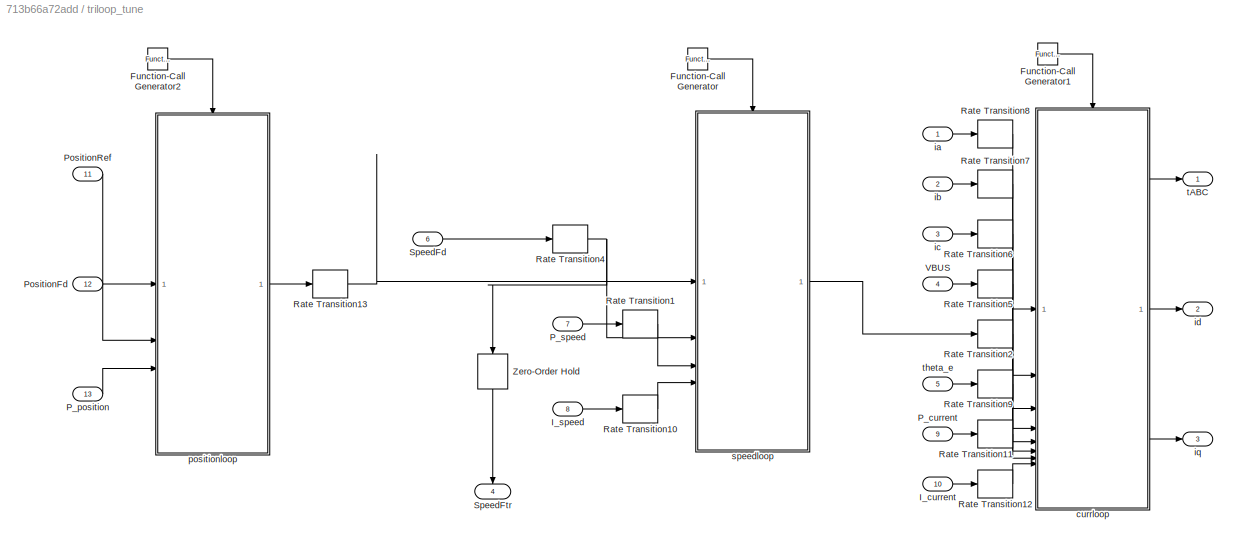
BLOCK [SubSystem] triloop_tune
  Commented = on
  TreatAsAtomicUnit = on
BLOCK [Reference] triloop_tune/Function-Call Generator  REF=simulink/Ports &
Subsystems/Function-Call
Generator
  SourceBlock = simulink/Ports &\nSubsystems/Function-Call\nGenerator
  SourceType = Function-Call Generator
BLOCK [Reference] triloop_tune/Function-Call Generator1  REF=simulink/Ports &
Subsystems/Function-Call
Generator
  SourceBlock = simulink/Ports &\nSubsystems/Function-Call\nGenerator
  SourceType = Function-Call Generator
BLOCK [Reference] triloop_tune/Function-Call Generator2  REF=simulink/Ports &
Subsystems/Function-Call
Generator
  SourceBlock = simulink/Ports &\nSubsystems/Function-Call\nGenerator
  SourceType = Function-Call Generator
BLOCK [Inport] triloop_tune/I_current
  Port = 10
BLOCK [Inport] triloop_tune/I_speed
  Port = 8
BLOCK [Inport] triloop_tune/P_current
  Port = 9
BLOCK [Inport] triloop_tune/P_position
  Port = 13
BLOCK [Inport] triloop_tune/P_speed
  Port = 7
BLOCK [Inport] triloop_tune/PositionFd
  Port = 12
BLOCK [Inport] triloop_tune/PositionRef
  Port = 11
BLOCK [RateTransition] triloop_tune/Rate Transition1
BLOCK [RateTransition] triloop_tune/Rate Transition10
BLOCK [RateTransition] triloop_tune/Rate Transition11
BLOCK [RateTransition] triloop_tune/Rate Transition12
BLOCK [RateTransition] triloop_tune/Rate Transition13
BLOCK [RateTransition] triloop_tune/Rate Transition2
BLOCK [RateTransition] triloop_tune/Rate Transition4
BLOCK [RateTransition] triloop_tune/Rate Transition5
BLOCK [RateTransition] triloop_tune/Rate Transition6
BLOCK [RateTransition] triloop_tune/Rate Transition7
BLOCK [RateTransition] triloop_tune/Rate Transition8
BLOCK [RateTransition] triloop_tune/Rate Transition9
BLOCK [Inport] triloop_tune/SpeedFd
  Port = 6
BLOCK [Outport] triloop_tune/SpeedFtr
  NameLocation = left
  Port = 4
BLOCK [Inport] triloop_tune/VBUS
  Port = 4
BLOCK [ZeroOrderHold] triloop_tune/Zero-Order Hold
  NameLocation = left
  SampleTime = -1
BLOCK [SubSystem] triloop_tune/currloop
  TreatAsAtomicUnit = on
BLOCK [SubSystem] triloop_tune/currloop/AntiPark
BLOCK [Sum] triloop_tune/currloop/AntiPark/Add
  IconShape = rectangular
  Inputs = +-
BLOCK [Sum] triloop_tune/currloop/AntiPark/Add1
  IconShape = rectangular
BLOCK [Product] triloop_tune/currloop/AntiPark/Product
BLOCK [Product] triloop_tune/currloop/AntiPark/Product1
BLOCK [Product] triloop_tune/currloop/AntiPark/Product2
BLOCK [Product] triloop_tune/currloop/AntiPark/Product3
BLOCK [Inport] triloop_tune/currloop/AntiPark/theta_cos
  Port = 4
BLOCK [Inport] triloop_tune/currloop/AntiPark/theta_sin
  Port = 3
BLOCK [Outport] triloop_tune/currloop/AntiPark/ualpha
  OutDataTypeStr = single
BLOCK [Outport] triloop_tune/currloop/AntiPark/ubeta
  OutDataTypeStr = single
  Port = 2
BLOCK [Inport] triloop_tune/currloop/AntiPark/ud
BLOCK [Inport] triloop_tune/currloop/AntiPark/uq
  Port = 2
BLOCK [SubSystem] triloop_tune/currloop/Clark
BLOCK [Sum] triloop_tune/currloop/Clark/Add
  AccumDataTypeStr = single
  IconShape = rectangular
  OutDataTypeStr = single
BLOCK [Sum] triloop_tune/currloop/Clark/Add1
  AccumDataTypeStr = single
  IconShape = rectangular
  Inputs = +-
  OutDataTypeStr = single
BLOCK [Sum] triloop_tune/currloop/Clark/Add2
  AccumDataTypeStr = single
  IconShape = rectangular
  Inputs = +-
  OutDataTypeStr = single
BLOCK [Gain] triloop_tune/currloop/Clark/Gain
  Gain = 2/3
  ParamDataTypeStr = single
BLOCK [Gain] triloop_tune/currloop/Clark/Gain1
  Gain = 1/3
  ParamDataTypeStr = single
BLOCK [Gain] triloop_tune/currloop/Clark/Gain2
  Gain = sqrt(3)/3
  ParamDataTypeStr = single
BLOCK [Inport] triloop_tune/currloop/Clark/ia
  OutDataTypeStr = single
BLOCK [Outport] triloop_tune/currloop/Clark/ialpha
  OutDataTypeStr = single
BLOCK [Inport] triloop_tune/currloop/Clark/ib
  OutDataTypeStr = single
  Port = 2
BLOCK [Outport] triloop_tune/currloop/Clark/ibeta
  OutDataTypeStr = single
  Port = 2
BLOCK [Inport] triloop_tune/currloop/Clark/ic
  OutDataTypeStr = single
  Port = 3
BLOCK [DataTypeConversion] triloop_tune/currloop/Data Type Conversion3
  OutDataTypeStr = single
  RndMeth = Floor
  SaturateOnIntegerOverflow = off
BLOCK [DataTypeConversion] triloop_tune/currloop/Data Type Conversion4
  OutDataTypeStr = single
  RndMeth = Floor
  SaturateOnIntegerOverflow = off
BLOCK [From] triloop_tune/currloop/From
  GotoTag = theta_sin
BLOCK [From] triloop_tune/currloop/From1
  GotoTag = theta_cos
BLOCK [Goto] triloop_tune/currloop/Goto
  GotoTag = theta_sin
BLOCK [Goto] triloop_tune/currloop/Goto1
  GotoTag = theta_cos
BLOCK [Inport] triloop_tune/currloop/I_current
  Port = 8
BLOCK [Inport] triloop_tune/currloop/IqRef
  Port = 5
BLOCK [Inport] triloop_tune/currloop/P_current
  Port = 7
BLOCK [SubSystem] triloop_tune/currloop/Park
BLOCK [Sum] triloop_tune/currloop/Park/Add
  AccumDataTypeStr = single
  IconShape = rectangular
  OutDataTypeStr = single
BLOCK [Sum] triloop_tune/currloop/Park/Add1
  AccumDataTypeStr = single
  IconShape = rectangular
  Inputs = -+
  OutDataTypeStr = single
BLOCK [Product] triloop_tune/currloop/Park/Product
  OutDataTypeStr = single
BLOCK [Product] triloop_tune/currloop/Park/Product1
  OutDataTypeStr = single
BLOCK [Product] triloop_tune/currloop/Park/Product2
  OutDataTypeStr = single
BLOCK [Product] triloop_tune/currloop/Park/Product3
  OutDataTypeStr = single
BLOCK [Inport] triloop_tune/currloop/Park/ialpha
  OutDataTypeStr = single
BLOCK [Inport] triloop_tune/currloop/Park/ibeta
  OutDataTypeStr = single
  Port = 2
BLOCK [Outport] triloop_tune/currloop/Park/id
  OutDataTypeStr = single
BLOCK [Outport] triloop_tune/currloop/Park/iq
  OutDataTypeStr = single
  Port = 2
BLOCK [Inport] triloop_tune/currloop/Park/theta_cos
  OutDataTypeStr = single
  Port = 4
BLOCK [Inport] triloop_tune/currloop/Park/theta_sin
  OutDataTypeStr = single
  Port = 3
BLOCK [SubSystem] triloop_tune/currloop/SVPWM
  RTWSystemCode = Reusable function
  TreatAsAtomicUnit = on
BLOCK [SubSystem] triloop_tune/currloop/SVPWM/AntiClark
BLOCK [Gain] triloop_tune/currloop/SVPWM/AntiClark/Gain
  Gain = -1/2
  OutDataTypeStr = single
BLOCK [Gain] triloop_tune/currloop/SVPWM/AntiClark/Gain1
  Gain = sqrt(3)/2
  OutDataTypeStr = single
BLOCK [Sum] triloop_tune/currloop/SVPWM/AntiClark/Sum
  Inputs = |++
  OutDataTypeStr = single
BLOCK [Sum] triloop_tune/currloop/SVPWM/AntiClark/Sum1
  Inputs = -+|
  OutDataTypeStr = single
BLOCK [Outport] triloop_tune/currloop/SVPWM/AntiClark/Va
  OutDataTypeStr = single
BLOCK [Inport] triloop_tune/currloop/SVPWM/AntiClark/Valpha
  OutDataTypeStr = single
BLOCK [Outport] triloop_tune/currloop/SVPWM/AntiClark/Vb
  OutDataTypeStr = single
  Port = 2
BLOCK [Inport] triloop_tune/currloop/SVPWM/AntiClark/Vbeta
  OutDataTypeStr = single
  Port = 2
BLOCK [Outport] triloop_tune/currloop/SVPWM/AntiClark/Vc
  OutDataTypeStr = single
  Port = 3
BLOCK [Constant] triloop_tune/currloop/SVPWM/Constant
  OutDataTypeStr = single
  Value = 0.5
BLOCK [Product] triloop_tune/currloop/SVPWM/Divide
  Inputs = */
  OutDataTypeStr = single
BLOCK [Gain] triloop_tune/currloop/SVPWM/Gain
  Gain = -1
  OutDataTypeStr = single
BLOCK [Mux] triloop_tune/currloop/SVPWM/Mux
  DisplayOption = bar
  Inputs = 3
BLOCK [Gain] triloop_tune/currloop/SVPWM/PWM_HalfPeriod
  Gain = 8500
  OutDataTypeStr = single
BLOCK [Sum] triloop_tune/currloop/SVPWM/Sum
  Inputs = ++|
  OutDataTypeStr = single
BLOCK [Sum] triloop_tune/currloop/SVPWM/Sum1
  Inputs = |++
  OutDataTypeStr = single
BLOCK [Inport] triloop_tune/currloop/SVPWM/Valpha
  OutDataTypeStr = single
BLOCK [Inport] triloop_tune/currloop/SVPWM/Vbeta
  OutDataTypeStr = single
  Port = 2
BLOCK [SubSystem] triloop_tune/currloop/SVPWM/ei_t
BLOCK [Demux] triloop_tune/currloop/SVPWM/ei_t/Demux
  Outputs = 3
BLOCK [Gain] triloop_tune/currloop/SVPWM/ei_t/Gain
  Gain = -1/2
  OutDataTypeStr = single
BLOCK [MinMax] triloop_tune/currloop/SVPWM/ei_t/Min
  Inputs = 3
  OutDataTypeStr = single
BLOCK [MinMax] triloop_tune/currloop/SVPWM/ei_t/Min1
  Function = max
  Inputs = 3
  OutDataTypeStr = single
BLOCK [Sum] triloop_tune/currloop/SVPWM/ei_t/Sum
  Inputs = |++
  OutDataTypeStr = single
BLOCK [Inport] triloop_tune/currloop/SVPWM/ei_t/Vabc
  OutDataTypeStr = single
BLOCK [Outport] triloop_tune/currloop/SVPWM/ei_t/ei_t
  OutDataTypeStr = single
BLOCK [Outport] triloop_tune/currloop/SVPWM/tABC
  OutDataTypeStr = single
BLOCK [Inport] triloop_tune/currloop/SVPWM/v_bus
  OutDataTypeStr = single
  Port = 3
BLOCK [Trigonometry] triloop_tune/currloop/SinCos
BLOCK [Trigonometry] triloop_tune/currloop/SinCos1
  Operator = cos
BLOCK [TriggerPort] triloop_tune/currloop/Trigger
  PortDimensions = 1
  StatesWhenEnabling = held
  TriggerType = function-call
  VariantControl = (inherit)
BLOCK [Inport] triloop_tune/currloop/ia
BLOCK [Inport] triloop_tune/currloop/ib
  Port = 2
BLOCK [Inport] triloop_tune/currloop/ic
  Port = 3
BLOCK [Outport] triloop_tune/currloop/id
  Port = 2
BLOCK [SubSystem] triloop_tune/currloop/idq_Controller
BLOCK [Constant] triloop_tune/currloop/idq_Controller/Constant
  OutDataTypeStr = single
  Value = 0
BLOCK [Inport] triloop_tune/currloop/idq_Controller/I_current
  OutDataTypeStr = single
  Port = 5
BLOCK [Reference] triloop_tune/currloop/idq_Controller/PID Controller1  REF=slpidlib/PID Controller
  SourceBlock = slpidlib/PID Controller
  SourceType = PID 1dof
BLOCK [Reference] triloop_tune/currloop/idq_Controller/PID Controller2  REF=slpidlib/PID Controller
  SourceBlock = slpidlib/PID Controller
  SourceType = PID 1dof
BLOCK [Inport] triloop_tune/currloop/idq_Controller/P_current
  OutDataTypeStr = single
  Port = 4
BLOCK [Scope] triloop_tune/currloop/idq_Controller/Scope
  Floating = off
  NumInputPorts = 2
BLOCK [Sum] triloop_tune/currloop/idq_Controller/Sum1
  AccumDataTypeStr = single
  Inputs = |+-
  OutDataTypeStr = single
BLOCK [Sum] triloop_tune/currloop/idq_Controller/Sum7
  AccumDataTypeStr = single
  Inputs = |+-
  OutDataTypeStr = single
BLOCK [Inport] triloop_tune/currloop/idq_Controller/id_fdbk
  OutDataTypeStr = single
BLOCK [Inport] triloop_tune/currloop/idq_Controller/iq_fdbk
  OutDataTypeStr = single
  Port = 2
BLOCK [Inport] triloop_tune/currloop/idq_Controller/iq_ref
  OutDataTypeStr = single
  Port = 3
BLOCK [Outport] triloop_tune/currloop/idq_Controller/ud_ref
  OutDataTypeStr = single
BLOCK [Outport] triloop_tune/currloop/idq_Controller/uq_ref
  OutDataTypeStr = single
  Port = 2
BLOCK [Outport] triloop_tune/currloop/iq
  Port = 3
BLOCK [Outport] triloop_tune/currloop/tABC
BLOCK [Inport] triloop_tune/currloop/theta_e
  Port = 6
BLOCK [Inport] triloop_tune/currloop/v_bus
  Port = 4
BLOCK [Inport] triloop_tune/ia
BLOCK [Inport] triloop_tune/ib
  Port = 2
BLOCK [Inport] triloop_tune/ic
  Port = 3
BLOCK [Outport] triloop_tune/id
  Port = 2
BLOCK [Outport] triloop_tune/iq
  Port = 3
BLOCK [SubSystem] triloop_tune/positionloop
BLOCK [Inport] triloop_tune/positionloop/P_position
  Port = 3
BLOCK [Inport] triloop_tune/positionloop/PositionFd
  Port = 2
BLOCK [Inport] triloop_tune/positionloop/PositionRef
BLOCK [Outport] triloop_tune/positionloop/SpeedRef
BLOCK [SubSystem] triloop_tune/positionloop/Subsystem
BLOCK [Reference] triloop_tune/positionloop/Subsystem/PID Controller3  REF=slpidlib/PID Controller
  SourceBlock = slpidlib/PID Controller
  SourceType = PID 1dof
BLOCK [Inport] triloop_tune/positionloop/Subsystem/P_position
  Port = 3
BLOCK [Inport] triloop_tune/positionloop/Subsystem/PositionFd
  Port = 2
BLOCK [Inport] triloop_tune/positionloop/Subsystem/PositionRef
BLOCK [Outport] triloop_tune/positionloop/Subsystem/SpeedRef
BLOCK [Sum] triloop_tune/positionloop/Subsystem/Sum2
  AccumDataTypeStr = single
  Inputs = |+-
  OutDataTypeStr = single
BLOCK [TriggerPort] triloop_tune/positionloop/Trigger
  PortDimensions = 1
  StatesWhenEnabling = held
  TriggerType = function-call
  VariantControl = (inherit)
BLOCK [SubSystem] triloop_tune/speedloop
BLOCK [Inport] triloop_tune/speedloop/I_speed
  Port = 4
BLOCK [Inport] triloop_tune/speedloop/P_speed
  Port = 3
BLOCK [Inport] triloop_tune/speedloop/SpeedFd
  Port = 2
BLOCK [Inport] triloop_tune/speedloop/SpeedRef
BLOCK [SubSystem] triloop_tune/speedloop/Subsystem
BLOCK [Inport] triloop_tune/speedloop/Subsystem/I_speed
  Port = 4
BLOCK [Reference] triloop_tune/speedloop/Subsystem/PID Controller3  REF=slpidlib/PID Controller
  SourceBlock = slpidlib/PID Controller
  SourceType = PID 1dof
BLOCK [Inport] triloop_tune/speedloop/Subsystem/P_speed
  Port = 3
BLOCK [Inport] triloop_tune/speedloop/Subsystem/SpeedFd
  Port = 2
BLOCK [Inport] triloop_tune/speedloop/Subsystem/SpeedRef
BLOCK [Sum] triloop_tune/speedloop/Subsystem/Sum2
  AccumDataTypeStr = single
  Inputs = |+-
  OutDataTypeStr = single
BLOCK [Outport] triloop_tune/speedloop/Subsystem/iqRef
BLOCK [TriggerPort] triloop_tune/speedloop/Trigger
  PortDimensions = 1
  StatesWhenEnabling = held
  TriggerType = function-call
  VariantControl = (inherit)
BLOCK [Outport] triloop_tune/speedloop/iqRef
BLOCK [Outport] triloop_tune/tABC
BLOCK [Inport] triloop_tune/theta_e
  Port = 5
ANNOTATION (root): rad
ANNOTATION (root): rad/s
ANNOTATION (root): rpm
ANNOTATION currloop/AntiPark: Valpha = ud*cos(theta) - uq*sin(theta); Vbeta = ud*sin(theta) + uq*cos(theta);
ANNOTATION currloop/Clark: ialpha = ia*2/3-(ib+ic)/3; ibeta = (ib-ic)*sqrt(3)/3;
ANNOTATION currloop/Park: id = ialpha*cos(theta)+ibeta*sin(theta); iq = -ialpha*sin(theta)+ibeta*cos(theta);
ANNOTATION currloop/SVPWM/AntiClark: Va = Valpha; Vb = Valpha*(-1/2)+Vbeta*sqrt(3)/3 Vc = Valpha*(-1/2)-Vbeta*sqrt(3)/3
ANNOTATION currloop/SVPWM/ei_t: V0 = -1/2(Vmax+Vmin)
ANNOTATION currloop1/AntiPark: Valpha = ud*cos(theta) - uq*sin(theta); Vbeta = ud*sin(theta) + uq*cos(theta);
ANNOTATION currloop1/Clark: ialpha = ia*2/3-(ib+ic)/3; ibeta = (ib-ic)*sqrt(3)/3;
ANNOTATION currloop1/Park: id = ialpha*cos(theta)+ibeta*sin(theta); iq = -ialpha*sin(theta)+ibeta*cos(theta);
ANNOTATION triloop_feedforward/currloop/AntiPark: Valpha = ud*cos(theta) - uq*sin(theta); Vbeta = ud*sin(theta) + uq*cos(theta);
ANNOTATION triloop_feedforward/currloop/Clark: ialpha = ia*2/3-(ib+ic)/3; ibeta = (ib-ic)*sqrt(3)/3;
ANNOTATION triloop_feedforward/currloop/Park: id = ialpha*cos(theta)+ibeta*sin(theta); iq = -ialpha*sin(theta)+ibeta*cos(theta);
ANNOTATION triloop_feedforward/currloop/SVPWM/AntiClark: Va = Valpha; Vb = Valpha*(-1/2)+Vbeta*sqrt(3)/3 Vc = Valpha*(-1/2)-Vbeta*sqrt(3)/3
ANNOTATION triloop_feedforward/currloop/SVPWM/ei_t: V0 = -1/2(Vmax+Vmin)
ANNOTATION triloop_tune/currloop/AntiPark: Valpha = ud*cos(theta) - uq*sin(theta); Vbeta = ud*sin(theta) + uq*cos(theta);
ANNOTATION triloop_tune/currloop/Clark: ialpha = ia*2/3-(ib+ic)/3; ibeta = (ib-ic)*sqrt(3)/3;
ANNOTATION triloop_tune/currloop/Park: id = ialpha*cos(theta)+ibeta*sin(theta); iq = -ialpha*sin(theta)+ibeta*cos(theta);
ANNOTATION triloop_tune/currloop/SVPWM/AntiClark: Va = Valpha; Vb = Valpha*(-1/2)+Vbeta*sqrt(3)/3 Vc = Valpha*(-1/2)-Vbeta*sqrt(3)/3
ANNOTATION triloop_tune/currloop/SVPWM/ei_t: V0 = -1/2(Vmax+Vmin)
LINE Average-Value Inverter3:1 -> Surface Mount PMSM3:2
LINE Average-Value Inverter4:1 -> Surface Mount PMSM4:2
LINE Bus Selector3:1 -> Goto27:1
LINE Bus Selector3:2 -> Goto21:1
LINE Bus Selector3:3 -> Goto22:1
NET Bus Selector3:4 -> Gain8:1, Goto26:1
LINE Bus Selector4:1 -> Goto34:1
LINE Bus Selector4:2 -> Goto28:1
LINE Bus Selector4:3 -> Goto29:1
NET Bus Selector4:4 -> Gain10:1, Goto33:1
LINE Constant26:1 -> Surface Mount PMSM3:1
LINE Constant28:1 -> Data Type Conversion45:1
LINE Constant34:1 -> Data Type Conversion40:1
LINE Constant35:1 -> Mod4:2
LINE Constant36:1 -> Data Type Conversion43:1
LINE Constant37:1 -> Data Type Conversion44:1
LINE Constant38:1 -> Average-Value Inverter3:2
LINE Constant39:1 -> Data Type Conversion39:1
LINE Constant40:1 -> Data Type Conversion37:1
LINE Constant41:1 -> Data Type Conversion47:1
LINE Constant42:1 -> Surface Mount PMSM4:1
LINE Constant43:1 -> Data Type Conversion58:1
LINE Constant44:1 -> Data Type Conversion53:1
LINE Constant45:1 -> Mod5:2
LINE Constant46:1 -> Data Type Conversion56:1
LINE Constant47:1 -> Data Type Conversion57:1
LINE Constant48:1 -> Average-Value Inverter4:2
LINE Constant49:1 -> Data Type Conversion52:1
LINE Constant50:1 -> Data Type Conversion50:1
LINE Constant51:1 -> Data Type Conversion60:1
LINE Data Type Conversion35:1 -> triloop_tune:1
LINE Data Type Conversion36:1 -> triloop_tune:2
LINE Data Type Conversion37:1 -> triloop_tune:10
LINE Data Type Conversion38:1 -> triloop_tune:3
LINE Data Type Conversion39:1 -> triloop_tune:4
LINE Data Type Conversion40:1 -> triloop_tune:11
LINE Data Type Conversion41:1 -> triloop_tune:5
LINE Data Type Conversion42:1 -> triloop_tune:6
LINE Data Type Conversion43:1 -> triloop_tune:7
LINE Data Type Conversion44:1 -> triloop_tune:8
LINE Data Type Conversion45:1 -> triloop_tune:9
LINE Data Type Conversion46:1 -> triloop_tune:12
LINE Data Type Conversion47:1 -> triloop_tune:13
LINE Data Type Conversion48:1 -> triloop_feedforward:1
LINE Data Type Conversion49:1 -> triloop_feedforward:2
LINE Data Type Conversion50:1 -> triloop_feedforward:10
LINE Data Type Conversion51:1 -> triloop_feedforward:3
LINE Data Type Conversion52:1 -> triloop_feedforward:4
LINE Data Type Conversion53:1 -> triloop_feedforward:11
LINE Data Type Conversion54:1 -> triloop_feedforward:5
LINE Data Type Conversion55:1 -> triloop_feedforward:6
LINE Data Type Conversion56:1 -> triloop_feedforward:7
LINE Data Type Conversion57:1 -> triloop_feedforward:8
LINE Data Type Conversion58:1 -> triloop_feedforward:9
LINE Data Type Conversion59:1 -> triloop_feedforward:12
LINE Data Type Conversion60:1 -> triloop_feedforward:13
LINE From21:1 -> Data Type Conversion36:1
LINE From22:1 -> Data Type Conversion38:1
LINE From23:1 -> Data Type Conversion42:1
LINE From24:1 -> Data Type Conversion35:1
LINE From25:1 -> Data Type Conversion41:1
LINE From26:1 -> Scope20:1
LINE From27:1 -> Data Type Conversion46:1
LINE From28:1 -> Scope21:1
LINE From29:1 -> Data Type Conversion49:1
LINE From30:1 -> Data Type Conversion51:1
LINE From31:1 -> Data Type Conversion55:1
LINE From32:1 -> Data Type Conversion48:1
LINE From33:1 -> Data Type Conversion54:1
LINE From34:1 -> Scope25:1
LINE From35:1 -> Data Type Conversion59:1
LINE From36:1 -> Scope26:1
LINE Gain10:1 -> Mod5:1
NET Gain7:1 -> Goto24:1, Scope17:1
LINE Gain8:1 -> Mod4:1
NET Gain9:1 -> Goto31:1, Scope22:1
NET Mod4:1 -> Goto23:1, Scope19:1
NET Mod5:1 -> Goto30:1, Scope24:1
NET Subsystem3/Constant:1 -> Subsystem3/Sum1:2, Subsystem3/Sum:2
LINE Subsystem3/DutyIn:1 -> Subsystem3/Gain:1
LINE Subsystem3/Gain1:1 -> Subsystem3/Sum1:1
LINE Subsystem3/Gain:1 -> Subsystem3/Sum:1
LINE Subsystem3/Sum1:1 -> Subsystem3/DutyOut:1
LINE Subsystem3/Sum:1 -> Subsystem3/Gain1:1
LINE Subsystem3:1 -> Average-Value Inverter3:1
NET Subsystem4/Constant:1 -> Subsystem4/Sum1:2, Subsystem4/Sum:2
LINE Subsystem4/DutyIn:1 -> Subsystem4/Gain:1
LINE Subsystem4/Gain1:1 -> Subsystem4/Sum1:1
LINE Subsystem4/Gain:1 -> Subsystem4/Sum:1
LINE Subsystem4/Sum1:1 -> Subsystem4/DutyOut:1
LINE Subsystem4/Sum:1 -> Subsystem4/Gain1:1
LINE Subsystem4:1 -> Average-Value Inverter4:1
LINE Surface Mount PMSM3:1 -> Bus Selector3:1
LINE Surface Mount PMSM3:2 -> Scope18:1
NET Surface Mount PMSM3:3 -> Gain7:1, Goto25:1
LINE Surface Mount PMSM4:1 -> Bus Selector4:1
LINE Surface Mount PMSM4:2 -> Scope23:1
NET Surface Mount PMSM4:3 -> Gain9:1, Goto32:1
LINE currloop/AntiPark/Add1:1 -> currloop/AntiPark/ubeta:1
LINE currloop/AntiPark/Add:1 -> currloop/AntiPark/ualpha:1
LINE currloop/AntiPark/Product1:1 -> currloop/AntiPark/Add:2
LINE currloop/AntiPark/Product2:1 -> currloop/AntiPark/Add1:1
LINE currloop/AntiPark/Product3:1 -> currloop/AntiPark/Add1:2
LINE currloop/AntiPark/Product:1 -> currloop/AntiPark/Add:1
NET currloop/AntiPark/theta_cos:1 -> currloop/AntiPark/Product3:2, currloop/AntiPark/Product:2
NET currloop/AntiPark/theta_sin:1 -> currloop/AntiPark/Product1:2, currloop/AntiPark/Product2:2
NET currloop/AntiPark/ud:1 -> currloop/AntiPark/Product2:1, currloop/AntiPark/Product:1
NET currloop/AntiPark/uq:1 -> currloop/AntiPark/Product1:1, currloop/AntiPark/Product3:1
LINE currloop/AntiPark:1 -> currloop/SVPWM:1
LINE currloop/AntiPark:2 -> currloop/SVPWM:2
LINE currloop/Clark/Add1:1 -> currloop/Clark/ialpha:1
LINE currloop/Clark/Add2:1 -> currloop/Clark/Gain2:1
LINE currloop/Clark/Add:1 -> currloop/Clark/Gain1:1
LINE currloop/Clark/Gain1:1 -> currloop/Clark/Add1:2
LINE currloop/Clark/Gain2:1 -> currloop/Clark/ibeta:1
LINE currloop/Clark/Gain:1 -> currloop/Clark/Add1:1
LINE currloop/Clark/ia:1 -> currloop/Clark/Gain:1
NET currloop/Clark/ib:1 -> currloop/Clark/Add2:1, currloop/Clark/Add:1
NET currloop/Clark/ic:1 -> currloop/Clark/Add2:2, currloop/Clark/Add:2
LINE currloop/Clark:1 -> currloop/Park:1
LINE currloop/Clark:2 -> currloop/Park:2
LINE currloop/Data Type Conversion3:1 -> currloop/SinCos:1
LINE currloop/Data Type Conversion4:1 -> currloop/SinCos1:1
LINE currloop/From1:1 -> currloop/AntiPark:4
LINE currloop/From:1 -> currloop/AntiPark:3
LINE currloop/I_current:1 -> currloop/idq_Controller:5
LINE currloop/IdRef:1 -> currloop/idq_Controller:6
LINE currloop/IqRef:1 -> currloop/idq_Controller:3
LINE currloop/P_current:1 -> currloop/idq_Controller:4
LINE currloop/Park/Add1:1 -> currloop/Park/iq:1
LINE currloop/Park/Add:1 -> currloop/Park/id:1
LINE currloop/Park/Product1:1 -> currloop/Park/Add:2
LINE currloop/Park/Product2:1 -> currloop/Park/Add1:1
LINE currloop/Park/Product3:1 -> currloop/Park/Add1:2
LINE currloop/Park/Product:1 -> currloop/Park/Add:1
NET currloop/Park/ialpha:1 -> currloop/Park/Product2:1, currloop/Park/Product:1
NET currloop/Park/ibeta:1 -> currloop/Park/Product1:1, currloop/Park/Product3:1
NET currloop/Park/theta_cos:1 -> currloop/Park/Product3:2, currloop/Park/Product:2
NET currloop/Park/theta_sin:1 -> currloop/Park/Product1:2, currloop/Park/Product2:2
NET currloop/Park:1 -> currloop/id:1, currloop/idq_Controller:1
NET currloop/Park:2 -> currloop/idq_Controller:2, currloop/iq:1
NET currloop/SVPWM/AntiClark/Gain1:1 -> currloop/SVPWM/AntiClark/Sum1:1, currloop/SVPWM/AntiClark/Sum:2
NET currloop/SVPWM/AntiClark/Gain:1 -> currloop/SVPWM/AntiClark/Sum1:2, currloop/SVPWM/AntiClark/Sum:1
LINE currloop/SVPWM/AntiClark/Sum1:1 -> currloop/SVPWM/AntiClark/Vc:1
LINE currloop/SVPWM/AntiClark/Sum:1 -> currloop/SVPWM/AntiClark/Vb:1
NET currloop/SVPWM/AntiClark/Valpha:1 -> currloop/SVPWM/AntiClark/Gain:1, currloop/SVPWM/AntiClark/Va:1
LINE currloop/SVPWM/AntiClark/Vbeta:1 -> currloop/SVPWM/AntiClark/Gain1:1
LINE currloop/SVPWM/AntiClark:1 -> currloop/SVPWM/Mux:1
LINE currloop/SVPWM/AntiClark:2 -> currloop/SVPWM/Mux:2
LINE currloop/SVPWM/AntiClark:3 -> currloop/SVPWM/Mux:3
LINE currloop/SVPWM/Constant:1 -> currloop/SVPWM/Sum1:2
LINE currloop/SVPWM/Divide:1 -> currloop/SVPWM/Sum1:1
LINE currloop/SVPWM/Gain:1 -> currloop/SVPWM/Divide:1
NET currloop/SVPWM/Mux:1 -> currloop/SVPWM/Sum:2, currloop/SVPWM/ei_t:1
LINE currloop/SVPWM/PWM_HalfPeriod:1 -> currloop/SVPWM/tABC:1
LINE currloop/SVPWM/Sum1:1 -> currloop/SVPWM/PWM_HalfPeriod:1
LINE currloop/SVPWM/Sum:1 -> currloop/SVPWM/Gain:1
LINE currloop/SVPWM/Valpha:1 -> currloop/SVPWM/AntiClark:1
LINE currloop/SVPWM/Vbeta:1 -> currloop/SVPWM/AntiClark:2
NET currloop/SVPWM/ei_t/Demux:1 -> currloop/SVPWM/ei_t/Min1:1, currloop/SVPWM/ei_t/Min:1
NET currloop/SVPWM/ei_t/Demux:2 -> currloop/SVPWM/ei_t/Min1:2, currloop/SVPWM/ei_t/Min:2
NET currloop/SVPWM/ei_t/Demux:3 -> currloop/SVPWM/ei_t/Min1:3, currloop/SVPWM/ei_t/Min:3
LINE currloop/SVPWM/ei_t/Gain:1 -> currloop/SVPWM/ei_t/ei_t:1
LINE currloop/SVPWM/ei_t/Min1:1 -> currloop/SVPWM/ei_t/Sum:2
LINE currloop/SVPWM/ei_t/Min:1 -> currloop/SVPWM/ei_t/Sum:1
LINE currloop/SVPWM/ei_t/Sum:1 -> currloop/SVPWM/ei_t/Gain:1
LINE currloop/SVPWM/ei_t/Vabc:1 -> currloop/SVPWM/ei_t/Demux:1
LINE currloop/SVPWM/ei_t:1 -> currloop/SVPWM/Sum:1
LINE currloop/SVPWM/v_bus:1 -> currloop/SVPWM/Divide:2
LINE currloop/SVPWM:1 -> currloop/tABC:1
NET currloop/SinCos1:1 -> currloop/Goto1:1, currloop/Park:4
NET currloop/SinCos:1 -> currloop/Goto:1, currloop/Park:3
LINE currloop/ia:1 -> currloop/Clark:1
LINE currloop/ib:1 -> currloop/Clark:2
LINE currloop/ic:1 -> currloop/Clark:3
NET currloop/idq_Controller/I_current:1 -> currloop/idq_Controller/PID Controller1:3, currloop/idq_Controller/PID Controller2:3
NET currloop/idq_Controller/PID Controller1:1 -> currloop/idq_Controller/Scope:1, currloop/idq_Controller/ud_ref:1
NET currloop/idq_Controller/PID Controller2:1 -> currloop/idq_Controller/Scope:2, currloop/idq_Controller/uq_ref:1
NET currloop/idq_Controller/P_current:1 -> currloop/idq_Controller/PID Controller1:2, currloop/idq_Controller/PID Controller2:2
LINE currloop/idq_Controller/Sum1:1 -> currloop/idq_Controller/PID Controller1:1
LINE currloop/idq_Controller/Sum7:1 -> currloop/idq_Controller/PID Controller2:1
LINE currloop/idq_Controller/id_fdbk:1 -> currloop/idq_Controller/Sum1:2
LINE currloop/idq_Controller/id_ref:1 -> currloop/idq_Controller/Sum1:1
LINE currloop/idq_Controller/iq_fdbk:1 -> currloop/idq_Controller/Sum7:2
LINE currloop/idq_Controller/iq_ref:1 -> currloop/idq_Controller/Sum7:1
LINE currloop/idq_Controller:1 -> currloop/AntiPark:1
LINE currloop/idq_Controller:2 -> currloop/AntiPark:2
NET currloop/theta_e:1 -> currloop/Data Type Conversion3:1, currloop/Data Type Conversion4:1
LINE currloop/v_bus:1 -> currloop/SVPWM:3
LINE currloop1/AntiPark/Add1:1 -> currloop1/AntiPark/ubeta:1
LINE currloop1/AntiPark/Add:1 -> currloop1/AntiPark/ualpha:1
LINE currloop1/AntiPark/Product1:1 -> currloop1/AntiPark/Add:2
LINE currloop1/AntiPark/Product2:1 -> currloop1/AntiPark/Add1:1
LINE currloop1/AntiPark/Product3:1 -> currloop1/AntiPark/Add1:2
LINE currloop1/AntiPark/Product:1 -> currloop1/AntiPark/Add:1
NET currloop1/AntiPark/theta_cos:1 -> currloop1/AntiPark/Product3:2, currloop1/AntiPark/Product:2
NET currloop1/AntiPark/theta_sin:1 -> currloop1/AntiPark/Product1:2, currloop1/AntiPark/Product2:2
NET currloop1/AntiPark/ud:1 -> currloop1/AntiPark/Product2:1, currloop1/AntiPark/Product:1
NET currloop1/AntiPark/uq:1 -> currloop1/AntiPark/Product1:1, currloop1/AntiPark/Product3:1
LINE currloop1/AntiPark:1 -> currloop1/ualpha:1
LINE currloop1/AntiPark:2 -> currloop1/ubeta:1
LINE currloop1/Clark/Add1:1 -> currloop1/Clark/ialpha:1
LINE currloop1/Clark/Add2:1 -> currloop1/Clark/Gain2:1
LINE currloop1/Clark/Add:1 -> currloop1/Clark/Gain1:1
LINE currloop1/Clark/Gain1:1 -> currloop1/Clark/Add1:2
LINE currloop1/Clark/Gain2:1 -> currloop1/Clark/ibeta:1
LINE currloop1/Clark/Gain:1 -> currloop1/Clark/Add1:1
LINE currloop1/Clark/ia:1 -> currloop1/Clark/Gain:1
NET currloop1/Clark/ib:1 -> currloop1/Clark/Add2:1, currloop1/Clark/Add:1
NET currloop1/Clark/ic:1 -> currloop1/Clark/Add2:2, currloop1/Clark/Add:2
LINE currloop1/Clark:1 -> currloop1/Park:1
LINE currloop1/Clark:2 -> currloop1/Park:2
LINE currloop1/Data Type Conversion3:1 -> currloop1/SinCos:1
LINE currloop1/Data Type Conversion4:1 -> currloop1/SinCos1:1
LINE currloop1/From1:1 -> currloop1/AntiPark:4
LINE currloop1/From:1 -> currloop1/AntiPark:3
LINE currloop1/I_current:1 -> currloop1/idq_Controller:5
LINE currloop1/IdRef:1 -> currloop1/idq_Controller:6
LINE currloop1/IqRef:1 -> currloop1/idq_Controller:3
LINE currloop1/P_current:1 -> currloop1/idq_Controller:4
LINE currloop1/Park/Add1:1 -> currloop1/Park/iq:1
LINE currloop1/Park/Add:1 -> currloop1/Park/id:1
LINE currloop1/Park/Product1:1 -> currloop1/Park/Add:2
LINE currloop1/Park/Product2:1 -> currloop1/Park/Add1:1
LINE currloop1/Park/Product3:1 -> currloop1/Park/Add1:2
LINE currloop1/Park/Product:1 -> currloop1/Park/Add:1
NET currloop1/Park/ialpha:1 -> currloop1/Park/Product2:1, currloop1/Park/Product:1
NET currloop1/Park/ibeta:1 -> currloop1/Park/Product1:1, currloop1/Park/Product3:1
NET currloop1/Park/theta_cos:1 -> currloop1/Park/Product3:2, currloop1/Park/Product:2
NET currloop1/Park/theta_sin:1 -> currloop1/Park/Product1:2, currloop1/Park/Product2:2
NET currloop1/Park:1 -> currloop1/id:1, currloop1/idq_Controller:1
NET currloop1/Park:2 -> currloop1/idq_Controller:2, currloop1/iq:1
NET currloop1/SinCos1:1 -> currloop1/Goto1:1, currloop1/Park:4
NET currloop1/SinCos:1 -> currloop1/Goto:1, currloop1/Park:3
LINE currloop1/ia:1 -> currloop1/Clark:1
LINE currloop1/ib:1 -> currloop1/Clark:2
LINE currloop1/ic:1 -> currloop1/Clark:3
NET currloop1/idq_Controller/I_current:1 -> currloop1/idq_Controller/PID Controller1:3, currloop1/idq_Controller/PID Controller2:3
NET currloop1/idq_Controller/PID Controller1:1 -> currloop1/idq_Controller/Scope:1, currloop1/idq_Controller/ud_ref:1
NET currloop1/idq_Controller/PID Controller2:1 -> currloop1/idq_Controller/Scope:2, currloop1/idq_Controller/uq_ref:1
NET currloop1/idq_Controller/P_current:1 -> currloop1/idq_Controller/PID Controller1:2, currloop1/idq_Controller/PID Controller2:2
LINE currloop1/idq_Controller/Sum1:1 -> currloop1/idq_Controller/PID Controller1:1
LINE currloop1/idq_Controller/Sum7:1 -> currloop1/idq_Controller/PID Controller2:1
LINE currloop1/idq_Controller/id_fdbk:1 -> currloop1/idq_Controller/Sum1:2
LINE currloop1/idq_Controller/id_ref:1 -> currloop1/idq_Controller/Sum1:1
LINE currloop1/idq_Controller/iq_fdbk:1 -> currloop1/idq_Controller/Sum7:2
LINE currloop1/idq_Controller/iq_ref:1 -> currloop1/idq_Controller/Sum7:1
LINE currloop1/idq_Controller:1 -> currloop1/AntiPark:1
LINE currloop1/idq_Controller:2 -> currloop1/AntiPark:2
NET currloop1/theta_e:1 -> currloop1/Data Type Conversion3:1, currloop1/Data Type Conversion4:1
LINE triloop_feedforward/Discrete Derivative:1 -> triloop_feedforward/Sum:2
LINE triloop_feedforward/Function-Call Generator1:1 -> triloop_feedforward/currloop:trigger
LINE triloop_feedforward/Function-Call Generator2:1 -> triloop_feedforward/positionloop:trigger
LINE triloop_feedforward/Function-Call Generator:1 -> triloop_feedforward/speedloop:trigger
LINE triloop_feedforward/Gain33:1 -> triloop_feedforward/Discrete Derivative:1
LINE triloop_feedforward/I_current:1 -> triloop_feedforward/Rate Transition12:1
LINE triloop_feedforward/I_speed:1 -> triloop_feedforward/Rate Transition10:1
LINE triloop_feedforward/P_current:1 -> triloop_feedforward/Rate Transition11:1
LINE triloop_feedforward/P_position:1 -> triloop_feedforward/positionloop:3
LINE triloop_feedforward/P_speed:1 -> triloop_feedforward/Rate Transition1:1
LINE triloop_feedforward/PositionFd:1 -> triloop_feedforward/positionloop:2
NET triloop_feedforward/PositionRef:1 -> triloop_feedforward/Gain33:1, triloop_feedforward/positionloop:1
LINE triloop_feedforward/Rate Transition10:1 -> triloop_feedforward/speedloop:4
LINE triloop_feedforward/Rate Transition11:1 -> triloop_feedforward/currloop:7
LINE triloop_feedforward/Rate Transition12:1 -> triloop_feedforward/currloop:8
LINE triloop_feedforward/Rate Transition13:1 -> triloop_feedforward/speedloop:1
LINE triloop_feedforward/Rate Transition1:1 -> triloop_feedforward/speedloop:3
LINE triloop_feedforward/Rate Transition2:1 -> triloop_feedforward/currloop:5
NET triloop_feedforward/Rate Transition4:1 -> triloop_feedforward/Zero-Order Hold:1, triloop_feedforward/speedloop:2
LINE triloop_feedforward/Rate Transition5:1 -> triloop_feedforward/currloop:4
LINE triloop_feedforward/Rate Transition6:1 -> triloop_feedforward/currloop:3
LINE triloop_feedforward/Rate Transition7:1 -> triloop_feedforward/currloop:2
LINE triloop_feedforward/Rate Transition8:1 -> triloop_feedforward/currloop:1
LINE triloop_feedforward/Rate Transition9:1 -> triloop_feedforward/currloop:6
LINE triloop_feedforward/SpeedFd:1 -> triloop_feedforward/Rate Transition4:1
LINE triloop_feedforward/Sum:1 -> triloop_feedforward/Rate Transition13:1
LINE triloop_feedforward/VBUS:1 -> triloop_feedforward/Rate Transition5:1
LINE triloop_feedforward/Zero-Order Hold:1 -> triloop_feedforward/SpeedFtr:1
LINE triloop_feedforward/currloop/AntiPark/Add1:1 -> triloop_feedforward/currloop/AntiPark/ubeta:1
LINE triloop_feedforward/currloop/AntiPark/Add:1 -> triloop_feedforward/currloop/AntiPark/ualpha:1
LINE triloop_feedforward/currloop/AntiPark/Product1:1 -> triloop_feedforward/currloop/AntiPark/Add:2
LINE triloop_feedforward/currloop/AntiPark/Product2:1 -> triloop_feedforward/currloop/AntiPark/Add1:1
LINE triloop_feedforward/currloop/AntiPark/Product3:1 -> triloop_feedforward/currloop/AntiPark/Add1:2
LINE triloop_feedforward/currloop/AntiPark/Product:1 -> triloop_feedforward/currloop/AntiPark/Add:1
NET triloop_feedforward/currloop/AntiPark/theta_cos:1 -> triloop_feedforward/currloop/AntiPark/Product3:2, triloop_feedforward/currloop/AntiPark/Product:2
NET triloop_feedforward/currloop/AntiPark/theta_sin:1 -> triloop_feedforward/currloop/AntiPark/Product1:2, triloop_feedforward/currloop/AntiPark/Product2:2
NET triloop_feedforward/currloop/AntiPark/ud:1 -> triloop_feedforward/currloop/AntiPark/Product2:1, triloop_feedforward/currloop/AntiPark/Product:1
NET triloop_feedforward/currloop/AntiPark/uq:1 -> triloop_feedforward/currloop/AntiPark/Product1:1, triloop_feedforward/currloop/AntiPark/Product3:1
LINE triloop_feedforward/currloop/AntiPark:1 -> triloop_feedforward/currloop/SVPWM:1
LINE triloop_feedforward/currloop/AntiPark:2 -> triloop_feedforward/currloop/SVPWM:2
LINE triloop_feedforward/currloop/Clark/Add1:1 -> triloop_feedforward/currloop/Clark/ialpha:1
LINE triloop_feedforward/currloop/Clark/Add2:1 -> triloop_feedforward/currloop/Clark/Gain2:1
LINE triloop_feedforward/currloop/Clark/Add:1 -> triloop_feedforward/currloop/Clark/Gain1:1
LINE triloop_feedforward/currloop/Clark/Gain1:1 -> triloop_feedforward/currloop/Clark/Add1:2
LINE triloop_feedforward/currloop/Clark/Gain2:1 -> triloop_feedforward/currloop/Clark/ibeta:1
LINE triloop_feedforward/currloop/Clark/Gain:1 -> triloop_feedforward/currloop/Clark/Add1:1
LINE triloop_feedforward/currloop/Clark/ia:1 -> triloop_feedforward/currloop/Clark/Gain:1
NET triloop_feedforward/currloop/Clark/ib:1 -> triloop_feedforward/currloop/Clark/Add2:1, triloop_feedforward/currloop/Clark/Add:1
NET triloop_feedforward/currloop/Clark/ic:1 -> triloop_feedforward/currloop/Clark/Add2:2, triloop_feedforward/currloop/Clark/Add:2
LINE triloop_feedforward/currloop/Clark:1 -> triloop_feedforward/currloop/Park:1
LINE triloop_feedforward/currloop/Clark:2 -> triloop_feedforward/currloop/Park:2
LINE triloop_feedforward/currloop/Data Type Conversion3:1 -> triloop_feedforward/currloop/SinCos:1
LINE triloop_feedforward/currloop/Data Type Conversion4:1 -> triloop_feedforward/currloop/SinCos1:1
LINE triloop_feedforward/currloop/From1:1 -> triloop_feedforward/currloop/AntiPark:4
LINE triloop_feedforward/currloop/From:1 -> triloop_feedforward/currloop/AntiPark:3
LINE triloop_feedforward/currloop/I_current:1 -> triloop_feedforward/currloop/idq_Controller:5
LINE triloop_feedforward/currloop/IqRef:1 -> triloop_feedforward/currloop/idq_Controller:3
LINE triloop_feedforward/currloop/P_current:1 -> triloop_feedforward/currloop/idq_Controller:4
LINE triloop_feedforward/currloop/Park/Add1:1 -> triloop_feedforward/currloop/Park/iq:1
LINE triloop_feedforward/currloop/Park/Add:1 -> triloop_feedforward/currloop/Park/id:1
LINE triloop_feedforward/currloop/Park/Product1:1 -> triloop_feedforward/currloop/Park/Add:2
LINE triloop_feedforward/currloop/Park/Product2:1 -> triloop_feedforward/currloop/Park/Add1:1
LINE triloop_feedforward/currloop/Park/Product3:1 -> triloop_feedforward/currloop/Park/Add1:2
LINE triloop_feedforward/currloop/Park/Product:1 -> triloop_feedforward/currloop/Park/Add:1
NET triloop_feedforward/currloop/Park/ialpha:1 -> triloop_feedforward/currloop/Park/Product2:1, triloop_feedforward/currloop/Park/Product:1
NET triloop_feedforward/currloop/Park/ibeta:1 -> triloop_feedforward/currloop/Park/Product1:1, triloop_feedforward/currloop/Park/Product3:1
NET triloop_feedforward/currloop/Park/theta_cos:1 -> triloop_feedforward/currloop/Park/Product3:2, triloop_feedforward/currloop/Park/Product:2
NET triloop_feedforward/currloop/Park/theta_sin:1 -> triloop_feedforward/currloop/Park/Product1:2, triloop_feedforward/currloop/Park/Product2:2
NET triloop_feedforward/currloop/Park:1 -> triloop_feedforward/currloop/id:1, triloop_feedforward/currloop/idq_Controller:1
NET triloop_feedforward/currloop/Park:2 -> triloop_feedforward/currloop/idq_Controller:2, triloop_feedforward/currloop/iq:1
NET triloop_feedforward/currloop/SVPWM/AntiClark/Gain1:1 -> triloop_feedforward/currloop/SVPWM/AntiClark/Sum1:1, triloop_feedforward/currloop/SVPWM/AntiClark/Sum:2
NET triloop_feedforward/currloop/SVPWM/AntiClark/Gain:1 -> triloop_feedforward/currloop/SVPWM/AntiClark/Sum1:2, triloop_feedforward/currloop/SVPWM/AntiClark/Sum:1
LINE triloop_feedforward/currloop/SVPWM/AntiClark/Sum1:1 -> triloop_feedforward/currloop/SVPWM/AntiClark/Vc:1
LINE triloop_feedforward/currloop/SVPWM/AntiClark/Sum:1 -> triloop_feedforward/currloop/SVPWM/AntiClark/Vb:1
NET triloop_feedforward/currloop/SVPWM/AntiClark/Valpha:1 -> triloop_feedforward/currloop/SVPWM/AntiClark/Gain:1, triloop_feedforward/currloop/SVPWM/AntiClark/Va:1
LINE triloop_feedforward/currloop/SVPWM/AntiClark/Vbeta:1 -> triloop_feedforward/currloop/SVPWM/AntiClark/Gain1:1
LINE triloop_feedforward/currloop/SVPWM/AntiClark:1 -> triloop_feedforward/currloop/SVPWM/Mux:1
LINE triloop_feedforward/currloop/SVPWM/AntiClark:2 -> triloop_feedforward/currloop/SVPWM/Mux:2
LINE triloop_feedforward/currloop/SVPWM/AntiClark:3 -> triloop_feedforward/currloop/SVPWM/Mux:3
LINE triloop_feedforward/currloop/SVPWM/Constant:1 -> triloop_feedforward/currloop/SVPWM/Sum1:2
LINE triloop_feedforward/currloop/SVPWM/Divide:1 -> triloop_feedforward/currloop/SVPWM/Sum1:1
LINE triloop_feedforward/currloop/SVPWM/Gain:1 -> triloop_feedforward/currloop/SVPWM/Divide:1
NET triloop_feedforward/currloop/SVPWM/Mux:1 -> triloop_feedforward/currloop/SVPWM/Sum:2, triloop_feedforward/currloop/SVPWM/ei_t:1
LINE triloop_feedforward/currloop/SVPWM/PWM_HalfPeriod:1 -> triloop_feedforward/currloop/SVPWM/tABC:1
LINE triloop_feedforward/currloop/SVPWM/Sum1:1 -> triloop_feedforward/currloop/SVPWM/PWM_HalfPeriod:1
LINE triloop_feedforward/currloop/SVPWM/Sum:1 -> triloop_feedforward/currloop/SVPWM/Gain:1
LINE triloop_feedforward/currloop/SVPWM/Valpha:1 -> triloop_feedforward/currloop/SVPWM/AntiClark:1
LINE triloop_feedforward/currloop/SVPWM/Vbeta:1 -> triloop_feedforward/currloop/SVPWM/AntiClark:2
NET triloop_feedforward/currloop/SVPWM/ei_t/Demux:1 -> triloop_feedforward/currloop/SVPWM/ei_t/Min1:1, triloop_feedforward/currloop/SVPWM/ei_t/Min:1
NET triloop_feedforward/currloop/SVPWM/ei_t/Demux:2 -> triloop_feedforward/currloop/SVPWM/ei_t/Min1:2, triloop_feedforward/currloop/SVPWM/ei_t/Min:2
NET triloop_feedforward/currloop/SVPWM/ei_t/Demux:3 -> triloop_feedforward/currloop/SVPWM/ei_t/Min1:3, triloop_feedforward/currloop/SVPWM/ei_t/Min:3
LINE triloop_feedforward/currloop/SVPWM/ei_t/Gain:1 -> triloop_feedforward/currloop/SVPWM/ei_t/ei_t:1
LINE triloop_feedforward/currloop/SVPWM/ei_t/Min1:1 -> triloop_feedforward/currloop/SVPWM/ei_t/Sum:2
LINE triloop_feedforward/currloop/SVPWM/ei_t/Min:1 -> triloop_feedforward/currloop/SVPWM/ei_t/Sum:1
LINE triloop_feedforward/currloop/SVPWM/ei_t/Sum:1 -> triloop_feedforward/currloop/SVPWM/ei_t/Gain:1
LINE triloop_feedforward/currloop/SVPWM/ei_t/Vabc:1 -> triloop_feedforward/currloop/SVPWM/ei_t/Demux:1
LINE triloop_feedforward/currloop/SVPWM/ei_t:1 -> triloop_feedforward/currloop/SVPWM/Sum:1
LINE triloop_feedforward/currloop/SVPWM/v_bus:1 -> triloop_feedforward/currloop/SVPWM/Divide:2
LINE triloop_feedforward/currloop/SVPWM:1 -> triloop_feedforward/currloop/tABC:1
NET triloop_feedforward/currloop/SinCos1:1 -> triloop_feedforward/currloop/Goto1:1, triloop_feedforward/currloop/Park:4
NET triloop_feedforward/currloop/SinCos:1 -> triloop_feedforward/currloop/Goto:1, triloop_feedforward/currloop/Park:3
LINE triloop_feedforward/currloop/ia:1 -> triloop_feedforward/currloop/Clark:1
LINE triloop_feedforward/currloop/ib:1 -> triloop_feedforward/currloop/Clark:2
LINE triloop_feedforward/currloop/ic:1 -> triloop_feedforward/currloop/Clark:3
LINE triloop_feedforward/currloop/idq_Controller/Constant:1 -> triloop_feedforward/currloop/idq_Controller/Sum1:1
NET triloop_feedforward/currloop/idq_Controller/I_current:1 -> triloop_feedforward/currloop/idq_Controller/PID Controller1:3, triloop_feedforward/currloop/idq_Controller/PID Controller2:3
NET triloop_feedforward/currloop/idq_Controller/PID Controller1:1 -> triloop_feedforward/currloop/idq_Controller/Scope:1, triloop_feedforward/currloop/idq_Controller/ud_ref:1
NET triloop_feedforward/currloop/idq_Controller/PID Controller2:1 -> triloop_feedforward/currloop/idq_Controller/Scope:2, triloop_feedforward/currloop/idq_Controller/uq_ref:1
NET triloop_feedforward/currloop/idq_Controller/P_current:1 -> triloop_feedforward/currloop/idq_Controller/PID Controller1:2, triloop_feedforward/currloop/idq_Controller/PID Controller2:2
LINE triloop_feedforward/currloop/idq_Controller/Sum1:1 -> triloop_feedforward/currloop/idq_Controller/PID Controller1:1
LINE triloop_feedforward/currloop/idq_Controller/Sum7:1 -> triloop_feedforward/currloop/idq_Controller/PID Controller2:1
LINE triloop_feedforward/currloop/idq_Controller/id_fdbk:1 -> triloop_feedforward/currloop/idq_Controller/Sum1:2
LINE triloop_feedforward/currloop/idq_Controller/iq_fdbk:1 -> triloop_feedforward/currloop/idq_Controller/Sum7:2
LINE triloop_feedforward/currloop/idq_Controller/iq_ref:1 -> triloop_feedforward/currloop/idq_Controller/Sum7:1
LINE triloop_feedforward/currloop/idq_Controller:1 -> triloop_feedforward/currloop/AntiPark:1
LINE triloop_feedforward/currloop/idq_Controller:2 -> triloop_feedforward/currloop/AntiPark:2
NET triloop_feedforward/currloop/theta_e:1 -> triloop_feedforward/currloop/Data Type Conversion3:1, triloop_feedforward/currloop/Data Type Conversion4:1
LINE triloop_feedforward/currloop/v_bus:1 -> triloop_feedforward/currloop/SVPWM:3
LINE triloop_feedforward/currloop:1 -> triloop_feedforward/tABC:1
LINE triloop_feedforward/currloop:2 -> triloop_feedforward/id:1
LINE triloop_feedforward/currloop:3 -> triloop_feedforward/iq:1
LINE triloop_feedforward/ia:1 -> triloop_feedforward/Rate Transition8:1
LINE triloop_feedforward/ib:1 -> triloop_feedforward/Rate Transition7:1
LINE triloop_feedforward/ic:1 -> triloop_feedforward/Rate Transition6:1
LINE triloop_feedforward/positionloop/P_position:1 -> triloop_feedforward/positionloop/Subsystem:3
LINE triloop_feedforward/positionloop/PositionFd:1 -> triloop_feedforward/positionloop/Subsystem:2
LINE triloop_feedforward/positionloop/PositionRef:1 -> triloop_feedforward/positionloop/Subsystem:1
LINE triloop_feedforward/positionloop/Subsystem/PID Controller3:1 -> triloop_feedforward/positionloop/Subsystem/SpeedRef:1
LINE triloop_feedforward/positionloop/Subsystem/P_position:1 -> triloop_feedforward/positionloop/Subsystem/PID Controller3:2
LINE triloop_feedforward/positionloop/Subsystem/PositionFd:1 -> triloop_feedforward/positionloop/Subsystem/Sum2:2
LINE triloop_feedforward/positionloop/Subsystem/PositionRef:1 -> triloop_feedforward/positionloop/Subsystem/Sum2:1
LINE triloop_feedforward/positionloop/Subsystem/Sum2:1 -> triloop_feedforward/positionloop/Subsystem/PID Controller3:1
LINE triloop_feedforward/positionloop/Subsystem:1 -> triloop_feedforward/positionloop/SpeedRef:1
LINE triloop_feedforward/positionloop:1 -> triloop_feedforward/Sum:1
LINE triloop_feedforward/speedloop/I_speed:1 -> triloop_feedforward/speedloop/Subsystem:4
LINE triloop_feedforward/speedloop/P_speed:1 -> triloop_feedforward/speedloop/Subsystem:3
LINE triloop_feedforward/speedloop/SpeedFd:1 -> triloop_feedforward/speedloop/Subsystem:2
LINE triloop_feedforward/speedloop/SpeedRef:1 -> triloop_feedforward/speedloop/Subsystem:1
LINE triloop_feedforward/speedloop/Subsystem/I_speed:1 -> triloop_feedforward/speedloop/Subsystem/PID Controller3:3
LINE triloop_feedforward/speedloop/Subsystem/PID Controller3:1 -> triloop_feedforward/speedloop/Subsystem/iqRef:1
LINE triloop_feedforward/speedloop/Subsystem/P_speed:1 -> triloop_feedforward/speedloop/Subsystem/PID Controller3:2
LINE triloop_feedforward/speedloop/Subsystem/SpeedFd:1 -> triloop_feedforward/speedloop/Subsystem/Sum2:2
LINE triloop_feedforward/speedloop/Subsystem/SpeedRef:1 -> triloop_feedforward/speedloop/Subsystem/Sum2:1
LINE triloop_feedforward/speedloop/Subsystem/Sum2:1 -> triloop_feedforward/speedloop/Subsystem/PID Controller3:1
LINE triloop_feedforward/speedloop/Subsystem:1 -> triloop_feedforward/speedloop/iqRef:1
LINE triloop_feedforward/speedloop:1 -> triloop_feedforward/Rate Transition2:1
LINE triloop_feedforward/theta_e:1 -> triloop_feedforward/Rate Transition9:1
LINE triloop_feedforward:1 -> Subsystem4:1
LINE triloop_tune/Function-Call Generator1:1 -> triloop_tune/currloop:trigger
LINE triloop_tune/Function-Call Generator2:1 -> triloop_tune/positionloop:trigger
LINE triloop_tune/Function-Call Generator:1 -> triloop_tune/speedloop:trigger
LINE triloop_tune/I_current:1 -> triloop_tune/Rate Transition12:1
LINE triloop_tune/I_speed:1 -> triloop_tune/Rate Transition10:1
LINE triloop_tune/P_current:1 -> triloop_tune/Rate Transition11:1
LINE triloop_tune/P_position:1 -> triloop_tune/positionloop:3
LINE triloop_tune/P_speed:1 -> triloop_tune/Rate Transition1:1
LINE triloop_tune/PositionFd:1 -> triloop_tune/positionloop:2
LINE triloop_tune/PositionRef:1 -> triloop_tune/positionloop:1
LINE triloop_tune/Rate Transition10:1 -> triloop_tune/speedloop:4
LINE triloop_tune/Rate Transition11:1 -> triloop_tune/currloop:7
LINE triloop_tune/Rate Transition12:1 -> triloop_tune/currloop:8
LINE triloop_tune/Rate Transition13:1 -> triloop_tune/speedloop:1
LINE triloop_tune/Rate Transition1:1 -> triloop_tune/speedloop:3
LINE triloop_tune/Rate Transition2:1 -> triloop_tune/currloop:5
NET triloop_tune/Rate Transition4:1 -> triloop_tune/Zero-Order Hold:1, triloop_tune/speedloop:2
LINE triloop_tune/Rate Transition5:1 -> triloop_tune/currloop:4
LINE triloop_tune/Rate Transition6:1 -> triloop_tune/currloop:3
LINE triloop_tune/Rate Transition7:1 -> triloop_tune/currloop:2
LINE triloop_tune/Rate Transition8:1 -> triloop_tune/currloop:1
LINE triloop_tune/Rate Transition9:1 -> triloop_tune/currloop:6
LINE triloop_tune/SpeedFd:1 -> triloop_tune/Rate Transition4:1
LINE triloop_tune/VBUS:1 -> triloop_tune/Rate Transition5:1
LINE triloop_tune/Zero-Order Hold:1 -> triloop_tune/SpeedFtr:1
LINE triloop_tune/currloop/AntiPark/Add1:1 -> triloop_tune/currloop/AntiPark/ubeta:1
LINE triloop_tune/currloop/AntiPark/Add:1 -> triloop_tune/currloop/AntiPark/ualpha:1
LINE triloop_tune/currloop/AntiPark/Product1:1 -> triloop_tune/currloop/AntiPark/Add:2
LINE triloop_tune/currloop/AntiPark/Product2:1 -> triloop_tune/currloop/AntiPark/Add1:1
LINE triloop_tune/currloop/AntiPark/Product3:1 -> triloop_tune/currloop/AntiPark/Add1:2
LINE triloop_tune/currloop/AntiPark/Product:1 -> triloop_tune/currloop/AntiPark/Add:1
NET triloop_tune/currloop/AntiPark/theta_cos:1 -> triloop_tune/currloop/AntiPark/Product3:2, triloop_tune/currloop/AntiPark/Product:2
NET triloop_tune/currloop/AntiPark/theta_sin:1 -> triloop_tune/currloop/AntiPark/Product1:2, triloop_tune/currloop/AntiPark/Product2:2
NET triloop_tune/currloop/AntiPark/ud:1 -> triloop_tune/currloop/AntiPark/Product2:1, triloop_tune/currloop/AntiPark/Product:1
NET triloop_tune/currloop/AntiPark/uq:1 -> triloop_tune/currloop/AntiPark/Product1:1, triloop_tune/currloop/AntiPark/Product3:1
LINE triloop_tune/currloop/AntiPark:1 -> triloop_tune/currloop/SVPWM:1
LINE triloop_tune/currloop/AntiPark:2 -> triloop_tune/currloop/SVPWM:2
LINE triloop_tune/currloop/Clark/Add1:1 -> triloop_tune/currloop/Clark/ialpha:1
LINE triloop_tune/currloop/Clark/Add2:1 -> triloop_tune/currloop/Clark/Gain2:1
LINE triloop_tune/currloop/Clark/Add:1 -> triloop_tune/currloop/Clark/Gain1:1
LINE triloop_tune/currloop/Clark/Gain1:1 -> triloop_tune/currloop/Clark/Add1:2
LINE triloop_tune/currloop/Clark/Gain2:1 -> triloop_tune/currloop/Clark/ibeta:1
LINE triloop_tune/currloop/Clark/Gain:1 -> triloop_tune/currloop/Clark/Add1:1
LINE triloop_tune/currloop/Clark/ia:1 -> triloop_tune/currloop/Clark/Gain:1
NET triloop_tune/currloop/Clark/ib:1 -> triloop_tune/currloop/Clark/Add2:1, triloop_tune/currloop/Clark/Add:1
NET triloop_tune/currloop/Clark/ic:1 -> triloop_tune/currloop/Clark/Add2:2, triloop_tune/currloop/Clark/Add:2
LINE triloop_tune/currloop/Clark:1 -> triloop_tune/currloop/Park:1
LINE triloop_tune/currloop/Clark:2 -> triloop_tune/currloop/Park:2
LINE triloop_tune/currloop/Data Type Conversion3:1 -> triloop_tune/currloop/SinCos:1
LINE triloop_tune/currloop/Data Type Conversion4:1 -> triloop_tune/currloop/SinCos1:1
LINE triloop_tune/currloop/From1:1 -> triloop_tune/currloop/AntiPark:4
LINE triloop_tune/currloop/From:1 -> triloop_tune/currloop/AntiPark:3
LINE triloop_tune/currloop/I_current:1 -> triloop_tune/currloop/idq_Controller:5
LINE triloop_tune/currloop/IqRef:1 -> triloop_tune/currloop/idq_Controller:3
LINE triloop_tune/currloop/P_current:1 -> triloop_tune/currloop/idq_Controller:4
LINE triloop_tune/currloop/Park/Add1:1 -> triloop_tune/currloop/Park/iq:1
LINE triloop_tune/currloop/Park/Add:1 -> triloop_tune/currloop/Park/id:1
LINE triloop_tune/currloop/Park/Product1:1 -> triloop_tune/currloop/Park/Add:2
LINE triloop_tune/currloop/Park/Product2:1 -> triloop_tune/currloop/Park/Add1:1
LINE triloop_tune/currloop/Park/Product3:1 -> triloop_tune/currloop/Park/Add1:2
LINE triloop_tune/currloop/Park/Product:1 -> triloop_tune/currloop/Park/Add:1
NET triloop_tune/currloop/Park/ialpha:1 -> triloop_tune/currloop/Park/Product2:1, triloop_tune/currloop/Park/Product:1
NET triloop_tune/currloop/Park/ibeta:1 -> triloop_tune/currloop/Park/Product1:1, triloop_tune/currloop/Park/Product3:1
NET triloop_tune/currloop/Park/theta_cos:1 -> triloop_tune/currloop/Park/Product3:2, triloop_tune/currloop/Park/Product:2
NET triloop_tune/currloop/Park/theta_sin:1 -> triloop_tune/currloop/Park/Product1:2, triloop_tune/currloop/Park/Product2:2
NET triloop_tune/currloop/Park:1 -> triloop_tune/currloop/id:1, triloop_tune/currloop/idq_Controller:1
NET triloop_tune/currloop/Park:2 -> triloop_tune/currloop/idq_Controller:2, triloop_tune/currloop/iq:1
NET triloop_tune/currloop/SVPWM/AntiClark/Gain1:1 -> triloop_tune/currloop/SVPWM/AntiClark/Sum1:1, triloop_tune/currloop/SVPWM/AntiClark/Sum:2
NET triloop_tune/currloop/SVPWM/AntiClark/Gain:1 -> triloop_tune/currloop/SVPWM/AntiClark/Sum1:2, triloop_tune/currloop/SVPWM/AntiClark/Sum:1
LINE triloop_tune/currloop/SVPWM/AntiClark/Sum1:1 -> triloop_tune/currloop/SVPWM/AntiClark/Vc:1
LINE triloop_tune/currloop/SVPWM/AntiClark/Sum:1 -> triloop_tune/currloop/SVPWM/AntiClark/Vb:1
NET triloop_tune/currloop/SVPWM/AntiClark/Valpha:1 -> triloop_tune/currloop/SVPWM/AntiClark/Gain:1, triloop_tune/currloop/SVPWM/AntiClark/Va:1
LINE triloop_tune/currloop/SVPWM/AntiClark/Vbeta:1 -> triloop_tune/currloop/SVPWM/AntiClark/Gain1:1
LINE triloop_tune/currloop/SVPWM/AntiClark:1 -> triloop_tune/currloop/SVPWM/Mux:1
LINE triloop_tune/currloop/SVPWM/AntiClark:2 -> triloop_tune/currloop/SVPWM/Mux:2
LINE triloop_tune/currloop/SVPWM/AntiClark:3 -> triloop_tune/currloop/SVPWM/Mux:3
LINE triloop_tune/currloop/SVPWM/Constant:1 -> triloop_tune/currloop/SVPWM/Sum1:2
LINE triloop_tune/currloop/SVPWM/Divide:1 -> triloop_tune/currloop/SVPWM/Sum1:1
LINE triloop_tune/currloop/SVPWM/Gain:1 -> triloop_tune/currloop/SVPWM/Divide:1
NET triloop_tune/currloop/SVPWM/Mux:1 -> triloop_tune/currloop/SVPWM/Sum:2, triloop_tune/currloop/SVPWM/ei_t:1
LINE triloop_tune/currloop/SVPWM/PWM_HalfPeriod:1 -> triloop_tune/currloop/SVPWM/tABC:1
LINE triloop_tune/currloop/SVPWM/Sum1:1 -> triloop_tune/currloop/SVPWM/PWM_HalfPeriod:1
LINE triloop_tune/currloop/SVPWM/Sum:1 -> triloop_tune/currloop/SVPWM/Gain:1
LINE triloop_tune/currloop/SVPWM/Valpha:1 -> triloop_tune/currloop/SVPWM/AntiClark:1
LINE triloop_tune/currloop/SVPWM/Vbeta:1 -> triloop_tune/currloop/SVPWM/AntiClark:2
NET triloop_tune/currloop/SVPWM/ei_t/Demux:1 -> triloop_tune/currloop/SVPWM/ei_t/Min1:1, triloop_tune/currloop/SVPWM/ei_t/Min:1
NET triloop_tune/currloop/SVPWM/ei_t/Demux:2 -> triloop_tune/currloop/SVPWM/ei_t/Min1:2, triloop_tune/currloop/SVPWM/ei_t/Min:2
NET triloop_tune/currloop/SVPWM/ei_t/Demux:3 -> triloop_tune/currloop/SVPWM/ei_t/Min1:3, triloop_tune/currloop/SVPWM/ei_t/Min:3
LINE triloop_tune/currloop/SVPWM/ei_t/Gain:1 -> triloop_tune/currloop/SVPWM/ei_t/ei_t:1
LINE triloop_tune/currloop/SVPWM/ei_t/Min1:1 -> triloop_tune/currloop/SVPWM/ei_t/Sum:2
LINE triloop_tune/currloop/SVPWM/ei_t/Min:1 -> triloop_tune/currloop/SVPWM/ei_t/Sum:1
LINE triloop_tune/currloop/SVPWM/ei_t/Sum:1 -> triloop_tune/currloop/SVPWM/ei_t/Gain:1
LINE triloop_tune/currloop/SVPWM/ei_t/Vabc:1 -> triloop_tune/currloop/SVPWM/ei_t/Demux:1
LINE triloop_tune/currloop/SVPWM/ei_t:1 -> triloop_tune/currloop/SVPWM/Sum:1
LINE triloop_tune/currloop/SVPWM/v_bus:1 -> triloop_tune/currloop/SVPWM/Divide:2
LINE triloop_tune/currloop/SVPWM:1 -> triloop_tune/currloop/tABC:1
NET triloop_tune/currloop/SinCos1:1 -> triloop_tune/currloop/Goto1:1, triloop_tune/currloop/Park:4
NET triloop_tune/currloop/SinCos:1 -> triloop_tune/currloop/Goto:1, triloop_tune/currloop/Park:3
LINE triloop_tune/currloop/ia:1 -> triloop_tune/currloop/Clark:1
LINE triloop_tune/currloop/ib:1 -> triloop_tune/currloop/Clark:2
LINE triloop_tune/currloop/ic:1 -> triloop_tune/currloop/Clark:3
LINE triloop_tune/currloop/idq_Controller/Constant:1 -> triloop_tune/currloop/idq_Controller/Sum1:1
NET triloop_tune/currloop/idq_Controller/I_current:1 -> triloop_tune/currloop/idq_Controller/PID Controller1:3, triloop_tune/currloop/idq_Controller/PID Controller2:3
NET triloop_tune/currloop/idq_Controller/PID Controller1:1 -> triloop_tune/currloop/idq_Controller/Scope:1, triloop_tune/currloop/idq_Controller/ud_ref:1
NET triloop_tune/currloop/idq_Controller/PID Controller2:1 -> triloop_tune/currloop/idq_Controller/Scope:2, triloop_tune/currloop/idq_Controller/uq_ref:1
NET triloop_tune/currloop/idq_Controller/P_current:1 -> triloop_tune/currloop/idq_Controller/PID Controller1:2, triloop_tune/currloop/idq_Controller/PID Controller2:2
LINE triloop_tune/currloop/idq_Controller/Sum1:1 -> triloop_tune/currloop/idq_Controller/PID Controller1:1
LINE triloop_tune/currloop/idq_Controller/Sum7:1 -> triloop_tune/currloop/idq_Controller/PID Controller2:1
LINE triloop_tune/currloop/idq_Controller/id_fdbk:1 -> triloop_tune/currloop/idq_Controller/Sum1:2
LINE triloop_tune/currloop/idq_Controller/iq_fdbk:1 -> triloop_tune/currloop/idq_Controller/Sum7:2
LINE triloop_tune/currloop/idq_Controller/iq_ref:1 -> triloop_tune/currloop/idq_Controller/Sum7:1
LINE triloop_tune/currloop/idq_Controller:1 -> triloop_tune/currloop/AntiPark:1
LINE triloop_tune/currloop/idq_Controller:2 -> triloop_tune/currloop/AntiPark:2
NET triloop_tune/currloop/theta_e:1 -> triloop_tune/currloop/Data Type Conversion3:1, triloop_tune/currloop/Data Type Conversion4:1
LINE triloop_tune/currloop/v_bus:1 -> triloop_tune/currloop/SVPWM:3
LINE triloop_tune/currloop:1 -> triloop_tune/tABC:1
LINE triloop_tune/currloop:2 -> triloop_tune/id:1
LINE triloop_tune/currloop:3 -> triloop_tune/iq:1
LINE triloop_tune/ia:1 -> triloop_tune/Rate Transition8:1
LINE triloop_tune/ib:1 -> triloop_tune/Rate Transition7:1
LINE triloop_tune/ic:1 -> triloop_tune/Rate Transition6:1
LINE triloop_tune/positionloop/P_position:1 -> triloop_tune/positionloop/Subsystem:3
LINE triloop_tune/positionloop/PositionFd:1 -> triloop_tune/positionloop/Subsystem:2
LINE triloop_tune/positionloop/PositionRef:1 -> triloop_tune/positionloop/Subsystem:1
LINE triloop_tune/positionloop/Subsystem/PID Controller3:1 -> triloop_tune/positionloop/Subsystem/SpeedRef:1
LINE triloop_tune/positionloop/Subsystem/P_position:1 -> triloop_tune/positionloop/Subsystem/PID Controller3:2
LINE triloop_tune/positionloop/Subsystem/PositionFd:1 -> triloop_tune/positionloop/Subsystem/Sum2:2
LINE triloop_tune/positionloop/Subsystem/PositionRef:1 -> triloop_tune/positionloop/Subsystem/Sum2:1
LINE triloop_tune/positionloop/Subsystem/Sum2:1 -> triloop_tune/positionloop/Subsystem/PID Controller3:1
LINE triloop_tune/positionloop/Subsystem:1 -> triloop_tune/positionloop/SpeedRef:1
LINE triloop_tune/positionloop:1 -> triloop_tune/Rate Transition13:1
LINE triloop_tune/speedloop/I_speed:1 -> triloop_tune/speedloop/Subsystem:4
LINE triloop_tune/speedloop/P_speed:1 -> triloop_tune/speedloop/Subsystem:3
LINE triloop_tune/speedloop/SpeedFd:1 -> triloop_tune/speedloop/Subsystem:2
LINE triloop_tune/speedloop/SpeedRef:1 -> triloop_tune/speedloop/Subsystem:1
LINE triloop_tune/speedloop/Subsystem/I_speed:1 -> triloop_tune/speedloop/Subsystem/PID Controller3:3
LINE triloop_tune/speedloop/Subsystem/PID Controller3:1 -> triloop_tune/speedloop/Subsystem/iqRef:1
LINE triloop_tune/speedloop/Subsystem/P_speed:1 -> triloop_tune/speedloop/Subsystem/PID Controller3:2
LINE triloop_tune/speedloop/Subsystem/SpeedFd:1 -> triloop_tune/speedloop/Subsystem/Sum2:2
LINE triloop_tune/speedloop/Subsystem/SpeedRef:1 -> triloop_tune/speedloop/Subsystem/Sum2:1
LINE triloop_tune/speedloop/Subsystem/Sum2:1 -> triloop_tune/speedloop/Subsystem/PID Controller3:1
LINE triloop_tune/speedloop/Subsystem:1 -> triloop_tune/speedloop/iqRef:1
LINE triloop_tune/speedloop:1 -> triloop_tune/Rate Transition2:1
LINE triloop_tune/theta_e:1 -> triloop_tune/Rate Transition9:1
LINE triloop_tune:1 -> Subsystem3:1
note: NET lines group one-source signal fan-out (src -> all destinations, sorted); 1:1 wires keep LINE
